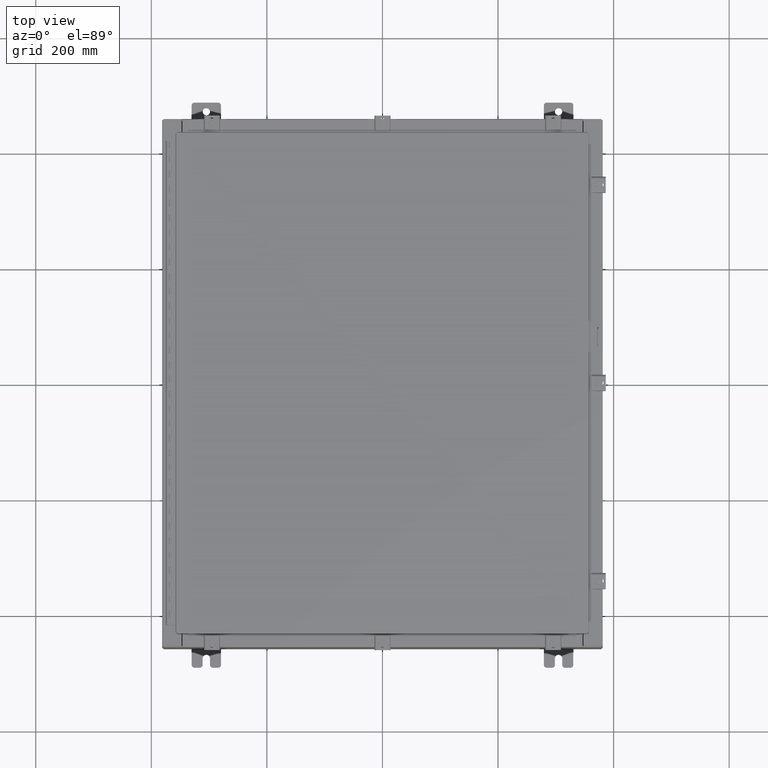
[diagram: clean part render]
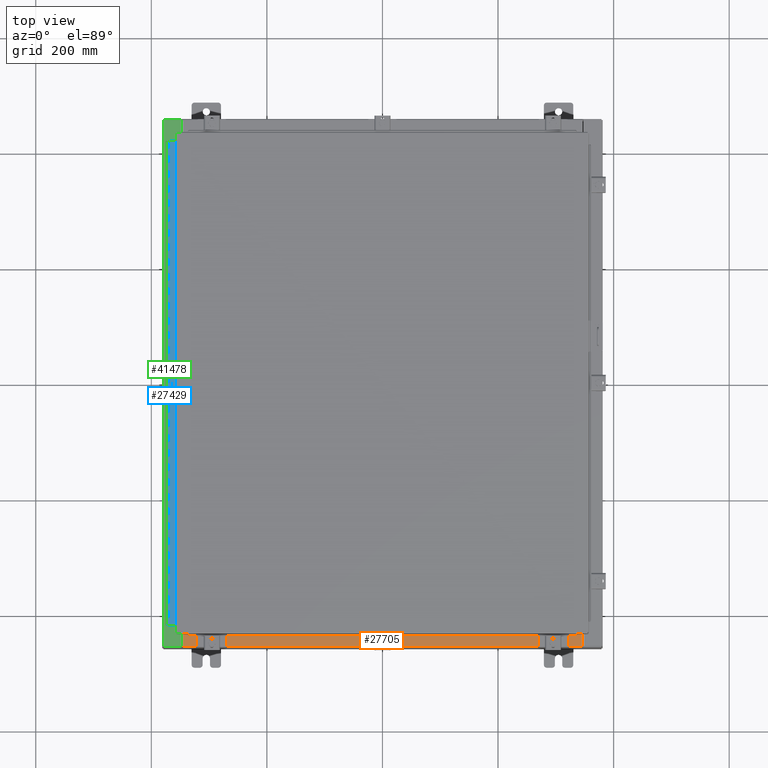
[diagram: same view with three faces highlighted in distinct colors, each labeled with its STEP entity id]
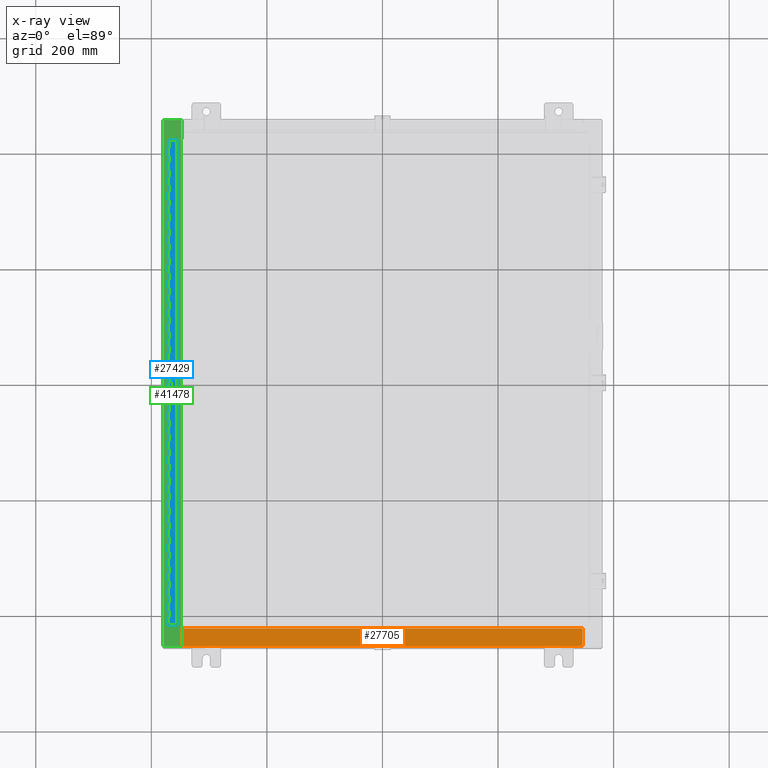
[diagram: x-ray of the same camera — body ghosted, the three highlighted faces saturated]
A machine part, top view with three faces highlighted in distinct colors.
The next image is the same camera in x-ray (body ghosted, the three faces saturated) — at least one of them is partly hidden behind the body in this view.
Their STEP definitions:

[orange] entity #27705 — the highlighted planar face has unit normal (-0, -0, 1).
#3696 = VERTEX_POINT ( 'NONE', #6119 ) ;
#3880 = CARTESIAN_POINT ( 'NONE',  ( 13.63720000000000400, -1.287299999999999900, 4.000000000000004400 ) ) ;
#5662 = VECTOR ( 'NONE', #11859, 39.37007874015748100 ) ;
#6050 = CARTESIAN_POINT ( 'NONE',  ( 0.0000000000000000000, 1.425992975200418500E-014, 4.000000000000000000 ) ) ;
#6119 = CARTESIAN_POINT ( 'NONE',  ( -13.63719999999999800, -1.287299999999999200, 4.000000000000004400 ) ) ;
#9411 = DIRECTION ( 'NONE',  ( 0.0000000000000000000, -1.000000000000000000, 3.566381192773190000E-015 ) ) ;
#10401 = VECTOR ( 'NONE', #32337, 39.37007874015748100 ) ;
#10516 = VERTEX_POINT ( 'NONE', #3880 ) ;
#10746 = EDGE_CURVE ( 'NONE', #16103, #10516, #41151, .T. ) ;
#11466 = LINE ( 'NONE', #42296, #10401 ) ;
#11859 = DIRECTION ( 'NONE',  ( -0.0000000000000000000, 1.000000000000000000, -3.566381192773190000E-015 ) ) ;
#12184 = VECTOR ( 'NONE', #24773, 39.37007874015748100 ) ;
#13497 = ORIENTED_EDGE ( 'NONE', *, *, #10746, .F. ) ;
#14505 = VECTOR ( 'NONE', #16921, 39.37007874015748100 ) ;
#16103 = VERTEX_POINT ( 'NONE', #36479 ) ;
#16921 = DIRECTION ( 'NONE',  ( -0.0000000000000000000, -1.000000000000000000, 3.566381192773190000E-015 ) ) ;
#19232 = ORIENTED_EDGE ( 'NONE', *, *, #34193, .T. ) ;
#22104 = LINE ( 'NONE', #41452, #12184 ) ;
#24773 = DIRECTION ( 'NONE',  ( -1.000000000000000000, 2.003232330437526000E-017, -7.144290108027600900E-032 ) ) ;
#24945 = ORIENTED_EDGE ( 'NONE', *, *, #30023, .F. ) ;
#25602 = EDGE_LOOP ( 'NONE', ( #24945, #36977, #13497, #19232 ) ) ;
#25865 = PLANE ( 'NONE',  #40417 ) ;
#27705 = ADVANCED_FACE ( 'NONE', ( #36224 ), #25865, .T. ) ;
#29382 = DIRECTION ( 'NONE',  ( 0.0000000000000000000, 3.566381192773190000E-015, 1.000000000000000000 ) ) ;
#29712 = CARTESIAN_POINT ( 'NONE',  ( -13.63719999999999800, -0.08770000000000000000, 4.000000000000000000 ) ) ;
#30023 = EDGE_CURVE ( 'NONE', #3696, #34481, #40132, .T. ) ;
#31822 = CARTESIAN_POINT ( 'NONE',  ( -13.63719999999999800, -0.07469999999999973900, 4.000000000000000000 ) ) ;
#32337 = DIRECTION ( 'NONE',  ( -1.000000000000000000, 0.0000000000000000000, 0.0000000000000000000 ) ) ;
#34193 = EDGE_CURVE ( 'NONE', #16103, #34481, #22104, .T. ) ;
#34481 = VERTEX_POINT ( 'NONE', #29712 ) ;
#36179 = EDGE_CURVE ( 'NONE', #10516, #3696, #11466, .T. ) ;
#36224 = FACE_OUTER_BOUND ( 'NONE', #25602, .T. ) ;
#36479 = CARTESIAN_POINT ( 'NONE',  ( 13.63720000000000400, -0.08769999999999965300, 4.000000000000000000 ) ) ;
#36923 = CARTESIAN_POINT ( 'NONE',  ( 13.63720000000000400, -1.300299999999999800, 4.000000000000004400 ) ) ;
#36977 = ORIENTED_EDGE ( 'NONE', *, *, #36179, .F. ) ;
#40132 = LINE ( 'NONE', #31822, #5662 ) ;
#40417 = AXIS2_PLACEMENT_3D ( 'NONE', #6050, #29382, #9411 ) ;
#41151 = LINE ( 'NONE', #36923, #14505 ) ;
#41452 = CARTESIAN_POINT ( 'NONE',  ( -1.756834753793995900E-018, -0.08770000000000000000, 4.000000000000000900 ) ) ;
#42296 = CARTESIAN_POINT ( 'NONE',  ( 13.63720000000000400, -1.287299999999999900, 4.000000000000003600 ) ) ;

[blue] entity #27429 — the highlighted planar face has unit normal (-0, -0, 1).
#70 = VERTEX_POINT ( 'NONE', #30152 ) ;
#217 = CARTESIAN_POINT ( 'NONE',  ( -0.6869999999999978300, 0.6754999999999996600, -30.50000000000000400 ) ) ;
#221 = LINE ( 'NONE', #943, #8054 ) ;
#231 = EDGE_CURVE ( 'NONE', #11872, #22519, #32296, .T. ) ;
#255 = VERTEX_POINT ( 'NONE', #287 ) ;
#287 = CARTESIAN_POINT ( 'NONE',  ( -0.6869999999999978300, 0.6754999999999996600, -10.00000000000000000 ) ) ;
#292 = DIRECTION ( 'NONE',  ( 0.0000000000000000000, 0.0000000000000000000, 1.000000000000000000 ) ) ;
#329 = CARTESIAN_POINT ( 'NONE',  ( -0.6869999999999978300, 0.6754999999999996600, -33.00000000000000000 ) ) ;
#384 = ORIENTED_EDGE ( 'NONE', *, *, #15163, .F. ) ;
#404 = VERTEX_POINT ( 'NONE', #24311 ) ;
#430 = ORIENTED_EDGE ( 'NONE', *, *, #231, .F. ) ;
#470 = EDGE_CURVE ( 'NONE', #11819, #2019, #32815, .T. ) ;
#519 = ORIENTED_EDGE ( 'NONE', *, *, #14346, .F. ) ;
#525 = ORIENTED_EDGE ( 'NONE', *, *, #18592, .F. ) ;
#585 = CARTESIAN_POINT ( 'NONE',  ( -0.6869999999999978300, 0.6754999999999996600, -32.50000000000000000 ) ) ;
#611 = ORIENTED_EDGE ( 'NONE', *, *, #9173, .F. ) ;
#615 = VERTEX_POINT ( 'NONE', #22127 ) ;
#657 = VECTOR ( 'NONE', #25580, 39.37007874015748100 ) ;
#669 = VERTEX_POINT ( 'NONE', #2577 ) ;
#681 = DIRECTION ( 'NONE',  ( 0.0000000000000000000, -0.0000000000000000000, -1.000000000000000000 ) ) ;
#699 = VECTOR ( 'NONE', #18224, 39.37007874015748100 ) ;
#740 = VECTOR ( 'NONE', #4609, 39.37007874015748100 ) ;
#790 = ORIENTED_EDGE ( 'NONE', *, *, #14919, .F. ) ;
#943 = CARTESIAN_POINT ( 'NONE',  ( -0.6869999999999973900, 0.8004999999999995500, -28.99999999999999600 ) ) ;
#992 = LINE ( 'NONE', #25900, #17680 ) ;
#995 = EDGE_CURVE ( 'NONE', #7819, #14506, #38519, .T. ) ;
#1009 = EDGE_CURVE ( 'NONE', #2019, #3196, #19722, .T. ) ;
#1061 = ORIENTED_EDGE ( 'NONE', *, *, #16940, .F. ) ;
#1063 = EDGE_CURVE ( 'NONE', #5099, #13703, #27517, .T. ) ;
#1141 = DIRECTION ( 'NONE',  ( -3.389037039080723100E-015, -1.000000000000000000, 0.0000000000000000000 ) ) ;
#1181 = VERTEX_POINT ( 'NONE', #21794 ) ;
#1198 = ORIENTED_EDGE ( 'NONE', *, *, #4176, .F. ) ;
#1202 = VECTOR ( 'NONE', #39822, 39.37007874015748100 ) ;
#1222 = DIRECTION ( 'NONE',  ( 3.389037039080723100E-015, 1.000000000000000000, -0.0000000000000000000 ) ) ;
#1256 = EDGE_CURVE ( 'NONE', #42756, #23640, #37973, .T. ) ;
#1263 = DIRECTION ( 'NONE',  ( 3.389037039080723100E-015, 1.000000000000000000, -0.0000000000000000000 ) ) ;
#1272 = CARTESIAN_POINT ( 'NONE',  ( -0.6869999999999973900, 0.8004999999999995500, -9.500000000000000000 ) ) ;
#1364 = CARTESIAN_POINT ( 'NONE',  ( -0.6869999999999978300, 0.6754999999999996600, -14.99999999999999800 ) ) ;
#1380 = LINE ( 'NONE', #14886, #18069 ) ;
#1437 = CARTESIAN_POINT ( 'NONE',  ( -0.6869999999999978300, 0.6754999999999996600, -21.00000000000000000 ) ) ;
#1455 = CARTESIAN_POINT ( 'NONE',  ( -0.6869999999999973900, 0.8004999999999995500, -11.99999999999999800 ) ) ;
#1561 = EDGE_CURVE ( 'NONE', #33968, #22748, #35314, .T. ) ;
#1564 = EDGE_CURVE ( 'NONE', #1971, #29086, #19679, .T. ) ;
#1598 = VECTOR ( 'NONE', #27686, 39.37007874015748100 ) ;
#1604 = VERTEX_POINT ( 'NONE', #34527 ) ;
#1725 = VERTEX_POINT ( 'NONE', #41986 ) ;
#1748 = CARTESIAN_POINT ( 'NONE',  ( -0.6869999999999973900, 0.8004999999999995500, -1.499999999999999800 ) ) ;
#1819 = DIRECTION ( 'NONE',  ( 3.389037039080723100E-015, 1.000000000000000000, -0.0000000000000000000 ) ) ;
#1842 = VERTEX_POINT ( 'NONE', #29244 ) ;
#1843 = CARTESIAN_POINT ( 'NONE',  ( -0.6869999999999982800, 0.5504999999999997700, -13.50000000000000000 ) ) ;
#1956 = VECTOR ( 'NONE', #30688, 39.37007874015748100 ) ;
#1971 = VERTEX_POINT ( 'NONE', #43285 ) ;
#2019 = VERTEX_POINT ( 'NONE', #33476 ) ;
#2022 = CARTESIAN_POINT ( 'NONE',  ( -0.6869999999999978300, 0.6754999999999996600, -33.00000000000000000 ) ) ;
#2152 = VECTOR ( 'NONE', #15220, 39.37007874015748100 ) ;
#2154 = VERTEX_POINT ( 'NONE', #37988 ) ;
#2171 = LINE ( 'NONE', #25617, #18871 ) ;
#2175 = ORIENTED_EDGE ( 'NONE', *, *, #41773, .F. ) ;
#2195 = VERTEX_POINT ( 'NONE', #42712 ) ;
#2217 = EDGE_CURVE ( 'NONE', #4089, #10201, #26887, .T. ) ;
#2272 = EDGE_CURVE ( 'NONE', #3548, #39200, #9174, .T. ) ;
#2310 = DIRECTION ( 'NONE',  ( 3.389037039080723100E-015, 1.000000000000000000, -0.0000000000000000000 ) ) ;
#2315 = CARTESIAN_POINT ( 'NONE',  ( -0.6869999999999978300, 0.6754999999999996600, -33.00000000000000000 ) ) ;
#2364 = CARTESIAN_POINT ( 'NONE',  ( -0.6869999999999978300, 0.6754999999999996600, -1.000000000000000000 ) ) ;
#2485 = DIRECTION ( 'NONE',  ( 0.0000000000000000000, -0.0000000000000000000, -1.000000000000000000 ) ) ;
#2521 = EDGE_CURVE ( 'NONE', #12726, #40628, #40202, .T. ) ;
#2553 = VERTEX_POINT ( 'NONE', #21233 ) ;
#2557 = ORIENTED_EDGE ( 'NONE', *, *, #1561, .T. ) ;
#2577 = CARTESIAN_POINT ( 'NONE',  ( -0.6869999999999982800, 0.5504999999999997700, -2.000000000000000000 ) ) ;
#2579 = ORIENTED_EDGE ( 'NONE', *, *, #27535, .F. ) ;
#2670 = CARTESIAN_POINT ( 'NONE',  ( -0.6869999999999982800, 0.5504999999999997700, -6.000000000000000900 ) ) ;
#2679 = VERTEX_POINT ( 'NONE', #21803 ) ;
#2732 = VECTOR ( 'NONE', #27511, 39.37007874015748100 ) ;
#2735 = CARTESIAN_POINT ( 'NONE',  ( -0.6869999999999982800, 0.5504999999999997700, -19.00000000000000000 ) ) ;
#2856 = DIRECTION ( 'NONE',  ( 0.0000000000000000000, 0.0000000000000000000, 1.000000000000000000 ) ) ;
#2896 = CARTESIAN_POINT ( 'NONE',  ( -0.6869999999999973900, 0.8004999999999995500, -16.00000000000000000 ) ) ;
#2959 = VECTOR ( 'NONE', #37558, 39.37007874015748100 ) ;
#2975 = ORIENTED_EDGE ( 'NONE', *, *, #38503, .F. ) ;
#2997 = LINE ( 'NONE', #25488, #19703 ) ;
#3044 = VECTOR ( 'NONE', #36518, 39.37007874015748100 ) ;
#3053 = ORIENTED_EDGE ( 'NONE', *, *, #1009, .F. ) ;
#3161 = DIRECTION ( 'NONE',  ( 0.0000000000000000000, 0.0000000000000000000, 1.000000000000000000 ) ) ;
#3186 = LINE ( 'NONE', #11873, #2152 ) ;
#3196 = VERTEX_POINT ( 'NONE', #27110 ) ;
#3217 = DIRECTION ( 'NONE',  ( 0.0000000000000000000, 0.0000000000000000000, 1.000000000000000000 ) ) ;
#3246 = CARTESIAN_POINT ( 'NONE',  ( -0.6869999999999978300, 0.6754999999999996600, -9.500000000000000000 ) ) ;
#3269 = VECTOR ( 'NONE', #16837, 39.37007874015748100 ) ;
#3343 = ORIENTED_EDGE ( 'NONE', *, *, #6789, .F. ) ;
#3443 = LINE ( 'NONE', #33755, #26914 ) ;
#3462 = CARTESIAN_POINT ( 'NONE',  ( -0.6869999999999978300, 0.6754999999999996600, -9.000000000000000000 ) ) ;
#3548 = VERTEX_POINT ( 'NONE', #22286 ) ;
#3585 = LINE ( 'NONE', #40261, #39105 ) ;
#3667 = DIRECTION ( 'NONE',  ( 3.389037039080723100E-015, 1.000000000000000000, -0.0000000000000000000 ) ) ;
#3690 = VECTOR ( 'NONE', #20310, 39.37007874015748100 ) ;
#3721 = CARTESIAN_POINT ( 'NONE',  ( -0.6869999999999973900, 0.8004999999999995500, -8.000000000000000000 ) ) ;
#3730 = EDGE_CURVE ( 'NONE', #33717, #8601, #11998, .T. ) ;
#3847 = VECTOR ( 'NONE', #5556, 39.37007874015748100 ) ;
#4017 = VECTOR ( 'NONE', #38019, 39.37007874015748100 ) ;
#4089 = VERTEX_POINT ( 'NONE', #28674 ) ;
#4097 = LINE ( 'NONE', #19926, #3044 ) ;
#4112 = EDGE_CURVE ( 'NONE', #28039, #13587, #38575, .T. ) ;
#4176 = EDGE_CURVE ( 'NONE', #37725, #31343, #37516, .T. ) ;
#4187 = EDGE_CURVE ( 'NONE', #42260, #3548, #992, .T. ) ;
#4188 = ORIENTED_EDGE ( 'NONE', *, *, #34315, .F. ) ;
#4325 = EDGE_CURVE ( 'NONE', #12256, #10612, #13495, .T. ) ;
#4379 = CARTESIAN_POINT ( 'NONE',  ( -0.6869999999999982800, 0.5504999999999997700, -14.49999999999999800 ) ) ;
#4403 = LINE ( 'NONE', #16831, #12219 ) ;
#4417 = VECTOR ( 'NONE', #24946, 39.37007874015748100 ) ;
#4421 = ORIENTED_EDGE ( 'NONE', *, *, #2272, .F. ) ;
#4444 = CARTESIAN_POINT ( 'NONE',  ( -0.6869999999999978300, 0.6754999999999996600, -2.500000000000000000 ) ) ;
#4506 = EDGE_CURVE ( 'NONE', #14872, #26481, #21834, .T. ) ;
#4538 = ORIENTED_EDGE ( 'NONE', *, *, #18596, .T. ) ;
#4584 = DIRECTION ( 'NONE',  ( 3.389037039080723100E-015, 1.000000000000000000, -0.0000000000000000000 ) ) ;
#4609 = DIRECTION ( 'NONE',  ( -3.389037039080723100E-015, -1.000000000000000000, 0.0000000000000000000 ) ) ;
#4808 = CARTESIAN_POINT ( 'NONE',  ( -0.6869999999999978300, 0.6754999999999996600, -17.00000000000000000 ) ) ;
#4811 = DIRECTION ( 'NONE',  ( 3.389037039080723100E-015, 1.000000000000000000, -0.0000000000000000000 ) ) ;
#4832 = DIRECTION ( 'NONE',  ( -3.389037039080723100E-015, -1.000000000000000000, 0.0000000000000000000 ) ) ;
#4925 = LINE ( 'NONE', #33313, #20608 ) ;
#4985 = CARTESIAN_POINT ( 'NONE',  ( -0.6869999999999978300, 0.6754999999999996600, -16.00000000000000000 ) ) ;
#5039 = DIRECTION ( 'NONE',  ( 3.389037039080723100E-015, 1.000000000000000000, -0.0000000000000000000 ) ) ;
#5058 = ORIENTED_EDGE ( 'NONE', *, *, #37981, .T. ) ;
#5078 = CARTESIAN_POINT ( 'NONE',  ( -0.6869999999999978300, 0.6754999999999996600, -33.00000000000000000 ) ) ;
#5099 = VERTEX_POINT ( 'NONE', #36254 ) ;
#5157 = CARTESIAN_POINT ( 'NONE',  ( -0.6869999999999978300, 0.6754999999999996600, -8.000000000000000000 ) ) ;
#5252 = VECTOR ( 'NONE', #1263, 39.37007874015748100 ) ;
#5318 = VECTOR ( 'NONE', #11467, 39.37007874015748100 ) ;
#5339 = CARTESIAN_POINT ( 'NONE',  ( -0.6869999999999982800, 0.5504999999999997700, -10.50000000000000000 ) ) ;
#5375 = DIRECTION ( 'NONE',  ( 0.0000000000000000000, 0.0000000000000000000, 1.000000000000000000 ) ) ;
#5399 = EDGE_CURVE ( 'NONE', #19875, #35542, #8187, .T. ) ;
#5400 = CARTESIAN_POINT ( 'NONE',  ( -0.6869999999999982800, 0.5504999999999997700, -17.50000000000000000 ) ) ;
#5447 = LINE ( 'NONE', #21622, #4417 ) ;
#5459 = CARTESIAN_POINT ( 'NONE',  ( -0.6869999999999982800, 0.5504999999999997700, -12.49999999999999800 ) ) ;
#5476 = CARTESIAN_POINT ( 'NONE',  ( -0.6869999999999978300, 0.6754999999999996600, -2.999999999999999600 ) ) ;
#5484 = VECTOR ( 'NONE', #42318, 39.37007874015748100 ) ;
#5491 = VERTEX_POINT ( 'NONE', #5157 ) ;
#5543 = VECTOR ( 'NONE', #30344, 39.37007874015748100 ) ;
#5556 = DIRECTION ( 'NONE',  ( -3.389037039080723100E-015, -1.000000000000000000, 0.0000000000000000000 ) ) ;
#5589 = VERTEX_POINT ( 'NONE', #9095 ) ;
#5663 = VERTEX_POINT ( 'NONE', #2670 ) ;
#5679 = VECTOR ( 'NONE', #23446, 39.37007874015748100 ) ;
#5690 = EDGE_CURVE ( 'NONE', #19875, #43136, #24315, .T. ) ;
#5732 = ORIENTED_EDGE ( 'NONE', *, *, #17137, .F. ) ;
#5767 = VERTEX_POINT ( 'NONE', #3246 ) ;
#5848 = EDGE_CURVE ( 'NONE', #5663, #29980, #18052, .T. ) ;
#5854 = VERTEX_POINT ( 'NONE', #27138 ) ;
#5871 = ORIENTED_EDGE ( 'NONE', *, *, #21418, .F. ) ;
#6055 = DIRECTION ( 'NONE',  ( -3.389037039080723100E-015, -1.000000000000000000, 0.0000000000000000000 ) ) ;
#6082 = VERTEX_POINT ( 'NONE', #41610 ) ;
#6142 = DIRECTION ( 'NONE',  ( 3.389037039080723100E-015, 1.000000000000000000, -0.0000000000000000000 ) ) ;
#6171 = EDGE_CURVE ( 'NONE', #2679, #255, #34199, .T. ) ;
#6225 = EDGE_CURVE ( 'NONE', #29086, #1842, #32112, .T. ) ;
#6312 = CARTESIAN_POINT ( 'NONE',  ( -0.6869999999999982800, 0.5504999999999997700, -1.499999999999999800 ) ) ;
#6412 = VECTOR ( 'NONE', #2310, 39.37007874015748100 ) ;
#6467 = LINE ( 'NONE', #20714, #41985 ) ;
#6473 = CARTESIAN_POINT ( 'NONE',  ( -0.6869999999999978300, 0.6754999999999996600, -17.50000000000000000 ) ) ;
#6599 = LINE ( 'NONE', #20461, #5543 ) ;
#6677 = EDGE_CURVE ( 'NONE', #5854, #23933, #17469, .T. ) ;
#6690 = VECTOR ( 'NONE', #19209, 39.37007874015748100 ) ;
#6692 = LINE ( 'NONE', #32867, #42205 ) ;
#6722 = LINE ( 'NONE', #35534, #13513 ) ;
#6727 = ORIENTED_EDGE ( 'NONE', *, *, #32677, .F. ) ;
#6757 = DIRECTION ( 'NONE',  ( 3.389037039080723100E-015, 1.000000000000000000, -0.0000000000000000000 ) ) ;
#6789 = EDGE_CURVE ( 'NONE', #35903, #1725, #5447, .T. ) ;
#6802 = VERTEX_POINT ( 'NONE', #8344 ) ;
#6823 = ORIENTED_EDGE ( 'NONE', *, *, #15106, .T. ) ;
#6833 = ORIENTED_EDGE ( 'NONE', *, *, #20941, .F. ) ;
#6858 = ORIENTED_EDGE ( 'NONE', *, *, #17915, .F. ) ;
#6916 = VERTEX_POINT ( 'NONE', #18982 ) ;
#6963 = ORIENTED_EDGE ( 'NONE', *, *, #1063, .F. ) ;
#6991 = ORIENTED_EDGE ( 'NONE', *, *, #38435, .F. ) ;
#7028 = DIRECTION ( 'NONE',  ( 0.0000000000000000000, 0.0000000000000000000, 1.000000000000000000 ) ) ;
#7076 = CARTESIAN_POINT ( 'NONE',  ( -0.6869999999999978300, 0.6754999999999996600, -33.00000000000000000 ) ) ;
#7095 = ORIENTED_EDGE ( 'NONE', *, *, #11405, .T. ) ;
#7127 = CARTESIAN_POINT ( 'NONE',  ( -0.6869999999999982800, 0.5504999999999997700, -9.000000000000000000 ) ) ;
#7139 = VECTOR ( 'NONE', #24008, 39.37007874015748100 ) ;
#7236 = EDGE_CURVE ( 'NONE', #35542, #34865, #6467, .T. ) ;
#7241 = VERTEX_POINT ( 'NONE', #24037 ) ;
#7361 = VERTEX_POINT ( 'NONE', #1437 ) ;
#7389 = DIRECTION ( 'NONE',  ( 3.389037039080723100E-015, 1.000000000000000000, -0.0000000000000000000 ) ) ;
#7391 = VECTOR ( 'NONE', #37983, 39.37007874015748100 ) ;
#7553 = CARTESIAN_POINT ( 'NONE',  ( -0.6869999999999982800, 0.5504999999999997700, -16.50000000000000000 ) ) ;
#7562 = CARTESIAN_POINT ( 'NONE',  ( -0.6869999999999982800, 0.5504999999999997700, -7.000000000000000000 ) ) ;
#7574 = LINE ( 'NONE', #14763, #24254 ) ;
#7575 = VERTEX_POINT ( 'NONE', #2735 ) ;
#7656 = VECTOR ( 'NONE', #32623, 39.37007874015748100 ) ;
#7819 = VERTEX_POINT ( 'NONE', #33780 ) ;
#7820 = CARTESIAN_POINT ( 'NONE',  ( -0.6869999999999982800, 0.5504999999999997700, -12.99999999999999800 ) ) ;
#7956 = DIRECTION ( 'NONE',  ( -3.389037039080723100E-015, -1.000000000000000000, 0.0000000000000000000 ) ) ;
#7977 = CARTESIAN_POINT ( 'NONE',  ( -0.6869999999999973900, 0.8004999999999995500, -28.50000000000000000 ) ) ;
#8038 = EDGE_CURVE ( 'NONE', #16926, #16710, #29353, .T. ) ;
#8054 = VECTOR ( 'NONE', #20930, 39.37007874015748100 ) ;
#8138 = DIRECTION ( 'NONE',  ( -3.389037039080723100E-015, -1.000000000000000000, 0.0000000000000000000 ) ) ;
#8162 = CARTESIAN_POINT ( 'NONE',  ( -0.6869999999999978300, 0.6754999999999996600, -17.99999999999999600 ) ) ;
#8187 = LINE ( 'NONE', #34773, #34795 ) ;
#8244 = VECTOR ( 'NONE', #32068, 39.37007874015748100 ) ;
#8274 = CARTESIAN_POINT ( 'NONE',  ( -0.6869999999999973900, 0.8004999999999995500, -27.50000000000000000 ) ) ;
#8328 = VERTEX_POINT ( 'NONE', #33474 ) ;
#8330 = VECTOR ( 'NONE', #21317, 39.37007874015748100 ) ;
#8344 = CARTESIAN_POINT ( 'NONE',  ( -0.6869999999999982800, 0.5504999999999997700, -31.00000000000000000 ) ) ;
#8368 = VECTOR ( 'NONE', #35092, 39.37007874015748100 ) ;
#8528 = EDGE_CURVE ( 'NONE', #5767, #19788, #9490, .T. ) ;
#8538 = DIRECTION ( 'NONE',  ( 3.389037039080723100E-015, 1.000000000000000000, -0.0000000000000000000 ) ) ;
#8589 = VECTOR ( 'NONE', #17830, 39.37007874015748100 ) ;
#8591 = VERTEX_POINT ( 'NONE', #24962 ) ;
#8601 = VERTEX_POINT ( 'NONE', #4985 ) ;
#8700 = VECTOR ( 'NONE', #27654, 39.37007874015748100 ) ;
#8707 = EDGE_CURVE ( 'NONE', #5589, #43187, #9982, .T. ) ;
#8737 = VECTOR ( 'NONE', #4584, 39.37007874015748100 ) ;
#8743 = DIRECTION ( 'NONE',  ( 0.0000000000000000000, -0.0000000000000000000, -1.000000000000000000 ) ) ;
#8788 = DIRECTION ( 'NONE',  ( 0.0000000000000000000, 0.0000000000000000000, 1.000000000000000000 ) ) ;
#8866 = CARTESIAN_POINT ( 'NONE',  ( -0.6869999999999982800, 0.5504999999999997700, -31.50000000000000400 ) ) ;
#9001 = VECTOR ( 'NONE', #1141, 39.37007874015748100 ) ;
#9034 = EDGE_CURVE ( 'NONE', #2154, #34043, #42868, .T. ) ;
#9094 = VECTOR ( 'NONE', #37704, 39.37007874015748100 ) ;
#9095 = CARTESIAN_POINT ( 'NONE',  ( -0.6869999999999982800, 0.5504999999999997700, -8.500000000000000000 ) ) ;
#9173 = EDGE_CURVE ( 'NONE', #615, #25572, #35500, .T. ) ;
#9174 = LINE ( 'NONE', #26327, #14905 ) ;
#9254 = CARTESIAN_POINT ( 'NONE',  ( -0.6869999999999982800, 0.5504999999999997700, -27.00000000000000000 ) ) ;
#9306 = CARTESIAN_POINT ( 'NONE',  ( -0.6869999999999982800, 0.5504999999999997700, -19.50000000000000000 ) ) ;
#9463 = CARTESIAN_POINT ( 'NONE',  ( -0.6869999999999978300, 0.6754999999999996600, -22.50000000000000000 ) ) ;
#9486 = ORIENTED_EDGE ( 'NONE', *, *, #34922, .T. ) ;
#9490 = LINE ( 'NONE', #41357, #7391 ) ;
#9508 = LINE ( 'NONE', #38891, #657 ) ;
#9570 = CARTESIAN_POINT ( 'NONE',  ( -0.6869999999999982800, 0.5504999999999997700, -21.00000000000000000 ) ) ;
#9591 = LINE ( 'NONE', #24780, #26266 ) ;
#9595 = LINE ( 'NONE', #1272, #740 ) ;
#9677 = EDGE_CURVE ( 'NONE', #29761, #615, #27629, .T. ) ;
#9746 = EDGE_CURVE ( 'NONE', #22365, #37190, #15630, .T. ) ;
#9764 = CARTESIAN_POINT ( 'NONE',  ( -0.6869999999999982800, 0.5504999999999997700, -28.50000000000000000 ) ) ;
#9798 = EDGE_CURVE ( 'NONE', #36735, #12286, #40185, .T. ) ;
#9819 = VECTOR ( 'NONE', #22761, 39.37007874015748100 ) ;
#9849 = CARTESIAN_POINT ( 'NONE',  ( -0.6869999999999978300, 0.6754999999999996600, -33.00000000000000000 ) ) ;
#9982 = LINE ( 'NONE', #28891, #11027 ) ;
#9999 = CARTESIAN_POINT ( 'NONE',  ( -0.6869999999999973900, 0.8004999999999995500, -20.50000000000000400 ) ) ;
#10081 = ORIENTED_EDGE ( 'NONE', *, *, #11719, .F. ) ;
#10127 = CARTESIAN_POINT ( 'NONE',  ( -0.6869999999999973900, 0.8004999999999995500, -4.000000000000000000 ) ) ;
#10143 = ORIENTED_EDGE ( 'NONE', *, *, #26157, .T. ) ;
#10151 = VECTOR ( 'NONE', #21688, 39.37007874015748100 ) ;
#10161 = ORIENTED_EDGE ( 'NONE', *, *, #10630, .T. ) ;
#10180 = CARTESIAN_POINT ( 'NONE',  ( -0.6869999999999973900, 0.8004999999999995500, -14.99999999999999800 ) ) ;
#10201 = VERTEX_POINT ( 'NONE', #11638 ) ;
#10216 = CARTESIAN_POINT ( 'NONE',  ( -0.6869999999999982800, 0.5504999999999997700, -20.00000000000000000 ) ) ;
#10226 = EDGE_CURVE ( 'NONE', #38798, #40219, #16631, .T. ) ;
#10300 = VERTEX_POINT ( 'NONE', #31898 ) ;
#10303 = EDGE_CURVE ( 'NONE', #28335, #16617, #6722, .T. ) ;
#10315 = VECTOR ( 'NONE', #16282, 39.37007874015748100 ) ;
#10318 = VERTEX_POINT ( 'NONE', #35684 ) ;
#10341 = CARTESIAN_POINT ( 'NONE',  ( -0.6869999999999982800, 0.5504999999999997700, -20.50000000000000400 ) ) ;
#10373 = DIRECTION ( 'NONE',  ( 3.389037039080723100E-015, 1.000000000000000000, -0.0000000000000000000 ) ) ;
#10419 = DIRECTION ( 'NONE',  ( 0.0000000000000000000, 0.0000000000000000000, 1.000000000000000000 ) ) ;
#10427 = ORIENTED_EDGE ( 'NONE', *, *, #10631, .T. ) ;
#10434 = CARTESIAN_POINT ( 'NONE',  ( -0.6869999999999978300, 0.6754999999999996600, -27.00000000000000000 ) ) ;
#10570 = CARTESIAN_POINT ( 'NONE',  ( -0.6869999999999978300, 0.6754999999999996600, -33.00000000000000000 ) ) ;
#10612 = VERTEX_POINT ( 'NONE', #28065 ) ;
#10630 = EDGE_CURVE ( 'NONE', #20205, #10300, #27548, .T. ) ;
#10631 = EDGE_CURVE ( 'NONE', #27381, #26030, #18690, .T. ) ;
#10648 = CARTESIAN_POINT ( 'NONE',  ( -0.6869999999999973900, 0.8004999999999995500, -5.500000000000000000 ) ) ;
#10683 = ORIENTED_EDGE ( 'NONE', *, *, #5399, .F. ) ;
#10728 = LINE ( 'NONE', #36443, #36305 ) ;
#10748 = CARTESIAN_POINT ( 'NONE',  ( -0.6869999999999982800, 0.5504999999999997700, -3.500000000000000000 ) ) ;
#10865 = VECTOR ( 'NONE', #13335, 39.37007874015748100 ) ;
#10870 = DIRECTION ( 'NONE',  ( -3.389037039080723100E-015, -1.000000000000000000, 0.0000000000000000000 ) ) ;
#10900 = DIRECTION ( 'NONE',  ( 0.0000000000000000000, -0.0000000000000000000, -1.000000000000000000 ) ) ;
#10923 = CARTESIAN_POINT ( 'NONE',  ( -0.6869999999999978300, 0.6754999999999996600, -23.50000000000000000 ) ) ;
#10985 = CARTESIAN_POINT ( 'NONE',  ( -0.6869999999999973900, 0.8004999999999995500, -23.00000000000000000 ) ) ;
#11027 = VECTOR ( 'NONE', #32251, 39.37007874015748100 ) ;
#11079 = EDGE_CURVE ( 'NONE', #42260, #16617, #2997, .T. ) ;
#11240 = VECTOR ( 'NONE', #24171, 39.37007874015748100 ) ;
#11252 = CARTESIAN_POINT ( 'NONE',  ( -0.6869999999999982800, 0.5504999999999997700, -30.50000000000000400 ) ) ;
#11374 = LINE ( 'NONE', #32910, #10315 ) ;
#11405 = EDGE_CURVE ( 'NONE', #70, #7361, #34804, .T. ) ;
#11416 = CARTESIAN_POINT ( 'NONE',  ( -0.6869999999999973900, 0.8004999999999995500, -14.00000000000000000 ) ) ;
#11467 = DIRECTION ( 'NONE',  ( 0.0000000000000000000, -0.0000000000000000000, -1.000000000000000000 ) ) ;
#11508 = CARTESIAN_POINT ( 'NONE',  ( -0.6869999999999973900, 0.8004999999999995500, -18.50000000000000000 ) ) ;
#11590 = EDGE_CURVE ( 'NONE', #404, #7575, #28514, .T. ) ;
#11605 = LINE ( 'NONE', #7553, #28288 ) ;
#11607 = ORIENTED_EDGE ( 'NONE', *, *, #34769, .F. ) ;
#11638 = CARTESIAN_POINT ( 'NONE',  ( -0.6869999999999978300, 0.6754999999999996600, -4.000000000000000000 ) ) ;
#11719 = EDGE_CURVE ( 'NONE', #15882, #14582, #31100, .T. ) ;
#11768 = ORIENTED_EDGE ( 'NONE', *, *, #9798, .F. ) ;
#11802 = CARTESIAN_POINT ( 'NONE',  ( -0.6869999999999978300, 0.6754999999999996600, -11.50000000000000000 ) ) ;
#11819 = VERTEX_POINT ( 'NONE', #29377 ) ;
#11856 = CARTESIAN_POINT ( 'NONE',  ( -0.6869999999999973900, 0.8004999999999995500, -29.99999999999999600 ) ) ;
#11872 = VERTEX_POINT ( 'NONE', #19612 ) ;
#11873 = CARTESIAN_POINT ( 'NONE',  ( -0.6869999999999973900, 0.8004999999999995500, -4.500000000000000000 ) ) ;
#11890 = VECTOR ( 'NONE', #1222, 39.37007874015748100 ) ;
#11929 = DIRECTION ( 'NONE',  ( 0.0000000000000000000, -0.0000000000000000000, -1.000000000000000000 ) ) ;
#11933 = ORIENTED_EDGE ( 'NONE', *, *, #35728, .T. ) ;
#11976 = LINE ( 'NONE', #30448, #28642 ) ;
#11998 = LINE ( 'NONE', #2896, #18757 ) ;
#12219 = VECTOR ( 'NONE', #36817, 39.37007874015748100 ) ;
#12256 = VERTEX_POINT ( 'NONE', #25337 ) ;
#12286 = VERTEX_POINT ( 'NONE', #8866 ) ;
#12320 = VERTEX_POINT ( 'NONE', #15716 ) ;
#12350 = EDGE_CURVE ( 'NONE', #39920, #33841, #16520, .T. ) ;
#12435 = CARTESIAN_POINT ( 'NONE',  ( -0.6869999999999978300, 0.6754999999999996600, -24.50000000000000000 ) ) ;
#12483 = CARTESIAN_POINT ( 'NONE',  ( -0.6869999999999978300, 0.6754999999999996600, -33.00000000000000000 ) ) ;
#12528 = VERTEX_POINT ( 'NONE', #40075 ) ;
#12726 = VERTEX_POINT ( 'NONE', #7820 ) ;
#12774 = CARTESIAN_POINT ( 'NONE',  ( -0.6869999999999973900, 0.8004999999999995500, -2.500000000000000000 ) ) ;
#12779 = LINE ( 'NONE', #12774, #37300 ) ;
#12789 = CARTESIAN_POINT ( 'NONE',  ( -0.6869999999999978300, 0.6754999999999996600, -33.00000000000000000 ) ) ;
#12800 = ORIENTED_EDGE ( 'NONE', *, *, #35924, .F. ) ;
#12886 = LINE ( 'NONE', #24258, #2959 ) ;
#12933 = LINE ( 'NONE', #24369, #11890 ) ;
#12972 = CARTESIAN_POINT ( 'NONE',  ( -0.6869999999999978300, 0.6754999999999996600, -29.50000000000000000 ) ) ;
#13029 = VERTEX_POINT ( 'NONE', #16241 ) ;
#13072 = ORIENTED_EDGE ( 'NONE', *, *, #23707, .F. ) ;
#13196 = LINE ( 'NONE', #10127, #3269 ) ;
#13309 = ORIENTED_EDGE ( 'NONE', *, *, #20874, .F. ) ;
#13316 = EDGE_CURVE ( 'NONE', #22703, #10300, #7574, .T. ) ;
#13335 = DIRECTION ( 'NONE',  ( 0.0000000000000000000, -0.0000000000000000000, -1.000000000000000000 ) ) ;
#13347 = DIRECTION ( 'NONE',  ( -3.389037039080723100E-015, -1.000000000000000000, 0.0000000000000000000 ) ) ;
#13490 = ORIENTED_EDGE ( 'NONE', *, *, #27989, .F. ) ;
#13494 = DIRECTION ( 'NONE',  ( 3.389037039080723100E-015, 1.000000000000000000, -0.0000000000000000000 ) ) ;
#13495 = LINE ( 'NONE', #39923, #30180 ) ;
#13513 = VECTOR ( 'NONE', #18927, 39.37007874015748100 ) ;
#13550 = VECTOR ( 'NONE', #22736, 39.37007874015748100 ) ;
#13587 = VERTEX_POINT ( 'NONE', #27386 ) ;
#13603 = CARTESIAN_POINT ( 'NONE',  ( -0.6869999999999973900, 0.8004999999999995500, -27.00000000000000000 ) ) ;
#13703 = VERTEX_POINT ( 'NONE', #4808 ) ;
#13764 = LINE ( 'NONE', #38844, #3847 ) ;
#13772 = CARTESIAN_POINT ( 'NONE',  ( -0.6869999999999982800, 0.5504999999999997700, -25.50000000000000400 ) ) ;
#13836 = ORIENTED_EDGE ( 'NONE', *, *, #10226, .F. ) ;
#13967 = VECTOR ( 'NONE', #10419, 39.37007874015748100 ) ;
#14012 = LINE ( 'NONE', #14997, #32805 ) ;
#14065 = DIRECTION ( 'NONE',  ( 0.0000000000000000000, -0.0000000000000000000, -1.000000000000000000 ) ) ;
#14179 = VECTOR ( 'NONE', #40921, 39.37007874015748100 ) ;
#14269 = EDGE_CURVE ( 'NONE', #5767, #15882, #9595, .T. ) ;
#14279 = LINE ( 'NONE', #31860, #22108 ) ;
#14310 = VECTOR ( 'NONE', #43276, 39.37007874015748100 ) ;
#14346 = EDGE_CURVE ( 'NONE', #18108, #32973, #14279, .T. ) ;
#14347 = CARTESIAN_POINT ( 'NONE',  ( -0.6869999999999982800, 0.5504999999999997700, -0.5000000000000000000 ) ) ;
#14506 = VERTEX_POINT ( 'NONE', #9254 ) ;
#14553 = VECTOR ( 'NONE', #19993, 39.37007874015748100 ) ;
#14582 = VERTEX_POINT ( 'NONE', #33028 ) ;
#14584 = CARTESIAN_POINT ( 'NONE',  ( -0.6869999999999982800, 0.5504999999999997700, -31.50000000000000400 ) ) ;
#14675 = VECTOR ( 'NONE', #18554, 39.37007874015748100 ) ;
#14724 = EDGE_CURVE ( 'NONE', #1725, #28335, #37217, .T. ) ;
#14763 = CARTESIAN_POINT ( 'NONE',  ( -0.6869999999999973900, 0.8004999999999995500, -28.00000000000000000 ) ) ;
#14796 = CARTESIAN_POINT ( 'NONE',  ( -0.6869999999999973900, 0.8004999999999995500, -21.50000000000000400 ) ) ;
#14829 = ORIENTED_EDGE ( 'NONE', *, *, #41584, .F. ) ;
#14872 = VERTEX_POINT ( 'NONE', #12972 ) ;
#14886 = CARTESIAN_POINT ( 'NONE',  ( -0.6869999999999973900, 0.8004999999999995500, -19.50000000000000000 ) ) ;
#14905 = VECTOR ( 'NONE', #19791, 39.37007874015748100 ) ;
#14919 = EDGE_CURVE ( 'NONE', #15705, #22365, #27784, .T. ) ;
#14997 = CARTESIAN_POINT ( 'NONE',  ( -0.6869999999999973900, 0.8004999999999995500, -0.5000000000000000000 ) ) ;
#15024 = VECTOR ( 'NONE', #41510, 39.37007874015748100 ) ;
#15038 = LINE ( 'NONE', #5078, #41686 ) ;
#15106 = EDGE_CURVE ( 'NONE', #2154, #1842, #29326, .T. ) ;
#15110 = EDGE_CURVE ( 'NONE', #40523, #5099, #11605, .T. ) ;
#15163 = EDGE_CURVE ( 'NONE', #6082, #22703, #19430, .T. ) ;
#15185 = LINE ( 'NONE', #24561, #5252 ) ;
#15220 = DIRECTION ( 'NONE',  ( -3.389037039080723100E-015, -1.000000000000000000, 0.0000000000000000000 ) ) ;
#15244 = VECTOR ( 'NONE', #25452, 39.37007874015748100 ) ;
#15245 = VECTOR ( 'NONE', #31587, 39.37007874015748100 ) ;
#15250 = EDGE_CURVE ( 'NONE', #41464, #23576, #32992, .T. ) ;
#15315 = ORIENTED_EDGE ( 'NONE', *, *, #15250, .T. ) ;
#15430 = LINE ( 'NONE', #27990, #41029 ) ;
#15525 = DIRECTION ( 'NONE',  ( 0.0000000000000000000, 0.0000000000000000000, 1.000000000000000000 ) ) ;
#15553 = CARTESIAN_POINT ( 'NONE',  ( -0.6869999999999982800, 0.5504999999999997700, -14.49999999999999800 ) ) ;
#15630 = LINE ( 'NONE', #32517, #23443 ) ;
#15687 = ORIENTED_EDGE ( 'NONE', *, *, #25626, .F. ) ;
#15705 = VERTEX_POINT ( 'NONE', #31101 ) ;
#15716 = CARTESIAN_POINT ( 'NONE',  ( -0.6869999999999978300, 0.6754999999999996600, -12.49999999999999800 ) ) ;
#15882 = VERTEX_POINT ( 'NONE', #42074 ) ;
#15954 = ORIENTED_EDGE ( 'NONE', *, *, #22443, .T. ) ;
#16034 = CARTESIAN_POINT ( 'NONE',  ( -0.6869999999999973900, 0.8004999999999995500, -31.50000000000000400 ) ) ;
#16074 = CARTESIAN_POINT ( 'NONE',  ( -0.6869999999999982800, 0.5504999999999997700, -16.00000000000000000 ) ) ;
#16145 = LINE ( 'NONE', #14584, #8330 ) ;
#16200 = ORIENTED_EDGE ( 'NONE', *, *, #37080, .F. ) ;
#16205 = CARTESIAN_POINT ( 'NONE',  ( -0.6869999999999982800, 0.5504999999999997700, -23.99999999999999600 ) ) ;
#16209 = DIRECTION ( 'NONE',  ( -3.389037039080723100E-015, -1.000000000000000000, 0.0000000000000000000 ) ) ;
#16241 = CARTESIAN_POINT ( 'NONE',  ( -0.6869999999999982800, 0.5504999999999997700, -14.00000000000000000 ) ) ;
#16282 = DIRECTION ( 'NONE',  ( 0.0000000000000000000, 0.0000000000000000000, 1.000000000000000000 ) ) ;
#16287 = VECTOR ( 'NONE', #3161, 39.37007874015748100 ) ;
#16460 = ORIENTED_EDGE ( 'NONE', *, *, #20555, .F. ) ;
#16520 = LINE ( 'NONE', #9306, #7656 ) ;
#16568 = DIRECTION ( 'NONE',  ( 0.0000000000000000000, -0.0000000000000000000, -1.000000000000000000 ) ) ;
#16579 = CARTESIAN_POINT ( 'NONE',  ( -0.6869999999999978300, 0.6754999999999996600, -33.00000000000000000 ) ) ;
#16606 = CARTESIAN_POINT ( 'NONE',  ( -0.6869999999999973900, 0.8004999999999995500, -20.00000000000000000 ) ) ;
#16617 = VERTEX_POINT ( 'NONE', #28991 ) ;
#16631 = LINE ( 'NONE', #41858, #17690 ) ;
#16662 = DIRECTION ( 'NONE',  ( 0.0000000000000000000, -0.0000000000000000000, -1.000000000000000000 ) ) ;
#16674 = DIRECTION ( 'NONE',  ( 3.389037039080723100E-015, 1.000000000000000000, -0.0000000000000000000 ) ) ;
#16710 = VERTEX_POINT ( 'NONE', #29573 ) ;
#16831 = CARTESIAN_POINT ( 'NONE',  ( -0.6869999999999982800, 0.5504999999999997700, -29.50000000000000000 ) ) ;
#16837 = DIRECTION ( 'NONE',  ( 3.389037039080723100E-015, 1.000000000000000000, -0.0000000000000000000 ) ) ;
#16838 = CARTESIAN_POINT ( 'NONE',  ( -0.6869999999999973900, 0.8004999999999995500, -32.00000000000000000 ) ) ;
#16926 = VERTEX_POINT ( 'NONE', #23866 ) ;
#16940 = EDGE_CURVE ( 'NONE', #6916, #5589, #35504, .T. ) ;
#16975 = CARTESIAN_POINT ( 'NONE',  ( -0.6869999999999978300, 0.6754999999999996600, -19.00000000000000000 ) ) ;
#17003 = CARTESIAN_POINT ( 'NONE',  ( -0.6869999999999973900, 0.8004999999999995500, -11.00000000000000000 ) ) ;
#17034 = LINE ( 'NONE', #36662, #34784 ) ;
#17137 = EDGE_CURVE ( 'NONE', #35566, #35550, #26101, .T. ) ;
#17326 = VECTOR ( 'NONE', #15525, 39.37007874015748100 ) ;
#17386 = ORIENTED_EDGE ( 'NONE', *, *, #22319, .F. ) ;
#17413 = ORIENTED_EDGE ( 'NONE', *, *, #22128, .T. ) ;
#17444 = CARTESIAN_POINT ( 'NONE',  ( -0.6869999999999973900, 0.8004999999999995500, -21.00000000000000000 ) ) ;
#17469 = LINE ( 'NONE', #37684, #8589 ) ;
#17528 = LINE ( 'NONE', #33090, #34217 ) ;
#17543 = VECTOR ( 'NONE', #22776, 39.37007874015748100 ) ;
#17574 = CARTESIAN_POINT ( 'NONE',  ( -0.6869999999999973900, 0.8004999999999995500, -29.50000000000000000 ) ) ;
#17588 = ORIENTED_EDGE ( 'NONE', *, *, #30614, .F. ) ;
#17651 = EDGE_CURVE ( 'NONE', #12286, #20091, #16145, .T. ) ;
#17680 = VECTOR ( 'NONE', #32614, 39.37007874015748100 ) ;
#17690 = VECTOR ( 'NONE', #31743, 39.37007874015748100 ) ;
#17719 = ORIENTED_EDGE ( 'NONE', *, *, #36904, .F. ) ;
#17751 = DIRECTION ( 'NONE',  ( 3.369016658928398200E-015, 1.000000000000000000, 0.0000000000000000000 ) ) ;
#17762 = DIRECTION ( 'NONE',  ( 0.0000000000000000000, -0.0000000000000000000, -1.000000000000000000 ) ) ;
#17764 = EDGE_CURVE ( 'NONE', #33968, #33796, #38589, .T. ) ;
#17792 = VECTOR ( 'NONE', #3217, 39.37007874015748100 ) ;
#17818 = ORIENTED_EDGE ( 'NONE', *, *, #22026, .F. ) ;
#17830 = DIRECTION ( 'NONE',  ( -3.389037039080723100E-015, -1.000000000000000000, 0.0000000000000000000 ) ) ;
#17908 = EDGE_CURVE ( 'NONE', #33841, #8328, #32289, .T. ) ;
#17915 = EDGE_CURVE ( 'NONE', #40589, #29307, #25505, .T. ) ;
#17945 = DIRECTION ( 'NONE',  ( 3.389037039080723100E-015, 1.000000000000000000, -0.0000000000000000000 ) ) ;
#17969 = EDGE_CURVE ( 'NONE', #12320, #42140, #3585, .T. ) ;
#17976 = DIRECTION ( 'NONE',  ( 3.389037039080723100E-015, 1.000000000000000000, -0.0000000000000000000 ) ) ;
#18020 = DIRECTION ( 'NONE',  ( 0.0000000000000000000, -0.0000000000000000000, -1.000000000000000000 ) ) ;
#18052 = LINE ( 'NONE', #40458, #25856 ) ;
#18069 = VECTOR ( 'NONE', #18237, 39.37007874015748100 ) ;
#18108 = VERTEX_POINT ( 'NONE', #7562 ) ;
#18125 = LINE ( 'NONE', #17444, #42683 ) ;
#18143 = LINE ( 'NONE', #2022, #25961 ) ;
#18149 = VECTOR ( 'NONE', #37561, 39.37007874015748100 ) ;
#18155 = EDGE_CURVE ( 'NONE', #33091, #20990, #14012, .T. ) ;
#18183 = CARTESIAN_POINT ( 'NONE',  ( -0.6869999999999973900, 0.8004999999999995500, -26.00000000000000000 ) ) ;
#18224 = DIRECTION ( 'NONE',  ( 0.0000000000000000000, -0.0000000000000000000, -1.000000000000000000 ) ) ;
#18237 = DIRECTION ( 'NONE',  ( -3.389037039080723100E-015, -1.000000000000000000, 0.0000000000000000000 ) ) ;
#18281 = VERTEX_POINT ( 'NONE', #15553 ) ;
#18324 = CARTESIAN_POINT ( 'NONE',  ( -0.6869999999999982800, 0.5504999999999997700, -32.00000000000000000 ) ) ;
#18344 = ORIENTED_EDGE ( 'NONE', *, *, #11590, .F. ) ;
#18355 = EDGE_CURVE ( 'NONE', #7575, #31452, #32243, .T. ) ;
#18376 = LINE ( 'NONE', #42250, #17326 ) ;
#18381 = VECTOR ( 'NONE', #17762, 39.37007874015748100 ) ;
#18436 = EDGE_CURVE ( 'NONE', #6916, #5491, #11374, .T. ) ;
#18473 = ORIENTED_EDGE ( 'NONE', *, *, #20106, .F. ) ;
#18554 = DIRECTION ( 'NONE',  ( 0.0000000000000000000, -0.0000000000000000000, -1.000000000000000000 ) ) ;
#18592 = EDGE_CURVE ( 'NONE', #20410, #5491, #23871, .T. ) ;
#18596 = EDGE_CURVE ( 'NONE', #43037, #31452, #40617, .T. ) ;
#18600 = CARTESIAN_POINT ( 'NONE',  ( -0.6869999999999978300, 0.6754999999999996600, 0.0000000000000000000 ) ) ;
#18637 = ORIENTED_EDGE ( 'NONE', *, *, #38878, .F. ) ;
#18677 = EDGE_CURVE ( 'NONE', #33091, #36639, #29613, .T. ) ;
#18690 = LINE ( 'NONE', #19571, #35377 ) ;
#18757 = VECTOR ( 'NONE', #29578, 39.37007874015748100 ) ;
#18797 = CARTESIAN_POINT ( 'NONE',  ( -0.6869999999999982800, 0.5504999999999997700, -1.499999999999999800 ) ) ;
#18871 = VECTOR ( 'NONE', #28966, 39.37007874015748100 ) ;
#18926 = VECTOR ( 'NONE', #41577, 39.37007874015748100 ) ;
#18927 = DIRECTION ( 'NONE',  ( 3.389037039080723100E-015, 1.000000000000000000, -0.0000000000000000000 ) ) ;
#18933 = DIRECTION ( 'NONE',  ( -3.389037039080723100E-015, -1.000000000000000000, 0.0000000000000000000 ) ) ;
#18982 = CARTESIAN_POINT ( 'NONE',  ( -0.6869999999999978300, 0.6754999999999996600, -8.500000000000000000 ) ) ;
#18989 = CARTESIAN_POINT ( 'NONE',  ( -0.6869999999999982800, 0.5504999999999997700, -3.500000000000000000 ) ) ;
#19003 = LINE ( 'NONE', #11416, #35695 ) ;
#19039 = VECTOR ( 'NONE', #13347, 39.37007874015748100 ) ;
#19058 = ORIENTED_EDGE ( 'NONE', *, *, #22638, .F. ) ;
#19092 = DIRECTION ( 'NONE',  ( 0.0000000000000000000, 0.0000000000000000000, 1.000000000000000000 ) ) ;
#19105 = CARTESIAN_POINT ( 'NONE',  ( -0.6869999999999978300, 0.6754999999999996600, -29.99999999999999600 ) ) ;
#19197 = DIRECTION ( 'NONE',  ( 0.0000000000000000000, 0.0000000000000000000, 1.000000000000000000 ) ) ;
#19209 = DIRECTION ( 'NONE',  ( 3.389037039080723100E-015, 1.000000000000000000, -0.0000000000000000000 ) ) ;
#19212 = LINE ( 'NONE', #20945, #18149 ) ;
#19220 = ORIENTED_EDGE ( 'NONE', *, *, #12350, .F. ) ;
#19300 = ORIENTED_EDGE ( 'NONE', *, *, #42154, .F. ) ;
#19341 = LINE ( 'NONE', #4379, #1598 ) ;
#19389 = ORIENTED_EDGE ( 'NONE', *, *, #1256, .T. ) ;
#19430 = LINE ( 'NONE', #31014, #18381 ) ;
#19452 = VECTOR ( 'NONE', #38603, 39.37007874015748100 ) ;
#19457 = EDGE_CURVE ( 'NONE', #43037, #39920, #1380, .T. ) ;
#19571 = CARTESIAN_POINT ( 'NONE',  ( -0.6869999999999978300, 0.6754999999999996600, -33.00000000000000000 ) ) ;
#19612 = CARTESIAN_POINT ( 'NONE',  ( -0.6869999999999982800, 0.5504999999999997700, -14.99999999999999800 ) ) ;
#19661 = DIRECTION ( 'NONE',  ( 0.0000000000000000000, 0.0000000000000000000, 1.000000000000000000 ) ) ;
#19679 = LINE ( 'NONE', #24307, #8700 ) ;
#19703 = VECTOR ( 'NONE', #28847, 39.37007874015748100 ) ;
#19715 = EDGE_CURVE ( 'NONE', #39116, #6802, #17528, .T. ) ;
#19722 = LINE ( 'NONE', #10985, #36400 ) ;
#19733 = ORIENTED_EDGE ( 'NONE', *, *, #9746, .F. ) ;
#19780 = DIRECTION ( 'NONE',  ( 3.369016658928398200E-015, 1.000000000000000000, 0.0000000000000000000 ) ) ;
#19788 = VERTEX_POINT ( 'NONE', #3462 ) ;
#19791 = DIRECTION ( 'NONE',  ( 0.0000000000000000000, -0.0000000000000000000, -1.000000000000000000 ) ) ;
#19863 = ORIENTED_EDGE ( 'NONE', *, *, #4506, .F. ) ;
#19875 = VERTEX_POINT ( 'NONE', #585 ) ;
#19926 = CARTESIAN_POINT ( 'NONE',  ( -0.6869999999999973900, 0.8004999999999995500, -31.00000000000000000 ) ) ;
#19944 = LINE ( 'NONE', #12483, #20997 ) ;
#19982 = LINE ( 'NONE', #11508, #18926 ) ;
#19983 = LINE ( 'NONE', #39647, #27783 ) ;
#19993 = DIRECTION ( 'NONE',  ( -3.389037039080723100E-015, -1.000000000000000000, 0.0000000000000000000 ) ) ;
#20040 = ORIENTED_EDGE ( 'NONE', *, *, #34965, .T. ) ;
#20091 = VERTEX_POINT ( 'NONE', #18324 ) ;
#20106 = EDGE_CURVE ( 'NONE', #37190, #26030, #39429, .T. ) ;
#20130 = LINE ( 'NONE', #10748, #11240 ) ;
#20185 = VERTEX_POINT ( 'NONE', #5476 ) ;
#20205 = VERTEX_POINT ( 'NONE', #25591 ) ;
#20231 = LINE ( 'NONE', #17003, #36929 ) ;
#20310 = DIRECTION ( 'NONE',  ( 0.0000000000000000000, 0.0000000000000000000, 1.000000000000000000 ) ) ;
#20389 = DIRECTION ( 'NONE',  ( 3.389037039080723100E-015, 1.000000000000000000, -0.0000000000000000000 ) ) ;
#20410 = VERTEX_POINT ( 'NONE', #32582 ) ;
#20461 = CARTESIAN_POINT ( 'NONE',  ( -0.6869999999999973900, 0.8004999999999995500, -24.99999999999999600 ) ) ;
#20478 = ORIENTED_EDGE ( 'NONE', *, *, #27876, .F. ) ;
#20555 = EDGE_CURVE ( 'NONE', #36127, #20185, #4925, .T. ) ;
#20608 = VECTOR ( 'NONE', #16674, 39.37007874015748100 ) ;
#20647 = VECTOR ( 'NONE', #5039, 39.37007874015748100 ) ;
#20685 = CARTESIAN_POINT ( 'NONE',  ( -0.6869999999999978300, 0.6754999999999996600, -33.00000000000000000 ) ) ;
#20714 = CARTESIAN_POINT ( 'NONE',  ( -0.6869999999999982800, 0.5504999999999997700, -32.50000000000000000 ) ) ;
#20718 = VECTOR ( 'NONE', #8538, 39.37007874015748100 ) ;
#20810 = EDGE_CURVE ( 'NONE', #13029, #23640, #19003, .T. ) ;
#20814 = VERTEX_POINT ( 'NONE', #24815 ) ;
#20836 = VECTOR ( 'NONE', #18933, 39.37007874015748100 ) ;
#20874 = EDGE_CURVE ( 'NONE', #1604, #32349, #24722, .T. ) ;
#20930 = DIRECTION ( 'NONE',  ( 3.389037039080723100E-015, 1.000000000000000000, -0.0000000000000000000 ) ) ;
#20941 = EDGE_CURVE ( 'NONE', #41732, #31047, #13764, .T. ) ;
#20945 = CARTESIAN_POINT ( 'NONE',  ( -0.6869999999999973900, 0.8004999999999995500, -11.50000000000000000 ) ) ;
#20972 = CARTESIAN_POINT ( 'NONE',  ( -0.6869999999999973900, 0.8004999999999995500, -30.50000000000000400 ) ) ;
#20977 = CARTESIAN_POINT ( 'NONE',  ( -0.6869999999999982800, 0.5504999999999997700, -15.50000000000000000 ) ) ;
#20985 = CARTESIAN_POINT ( 'NONE',  ( -0.6870000000000022800, -0.6245000000000003900, -33.00000000000000000 ) ) ;
#20990 = VERTEX_POINT ( 'NONE', #22481 ) ;
#20997 = VECTOR ( 'NONE', #19197, 39.37007874015748100 ) ;
#21233 = CARTESIAN_POINT ( 'NONE',  ( -0.6869999999999978300, 0.6754999999999996600, -22.00000000000000000 ) ) ;
#21317 = DIRECTION ( 'NONE',  ( 0.0000000000000000000, -0.0000000000000000000, -1.000000000000000000 ) ) ;
#21347 = ORIENTED_EDGE ( 'NONE', *, *, #6171, .T. ) ;
#21399 = CARTESIAN_POINT ( 'NONE',  ( -0.6869999999999982800, 0.5504999999999997700, -21.50000000000000400 ) ) ;
#21418 = EDGE_CURVE ( 'NONE', #10612, #42140, #21573, .T. ) ;
#21465 = ORIENTED_EDGE ( 'NONE', *, *, #7236, .F. ) ;
#21497 = VERTEX_POINT ( 'NONE', #11802 ) ;
#21572 = EDGE_CURVE ( 'NONE', #25572, #37958, #34072, .T. ) ;
#21573 = LINE ( 'NONE', #1455, #38280 ) ;
#21622 = CARTESIAN_POINT ( 'NONE',  ( -0.6869999999999973900, 0.8004999999999995500, -23.50000000000000000 ) ) ;
#21688 = DIRECTION ( 'NONE',  ( -3.389037039080723100E-015, -1.000000000000000000, 0.0000000000000000000 ) ) ;
#21697 = EDGE_CURVE ( 'NONE', #21497, #2195, #19983, .T. ) ;
#21794 = CARTESIAN_POINT ( 'NONE',  ( -0.6869999999999982800, 0.5504999999999997700, -22.00000000000000000 ) ) ;
#21803 = CARTESIAN_POINT ( 'NONE',  ( -0.6869999999999978300, 0.6754999999999996600, -10.50000000000000000 ) ) ;
#21811 = VECTOR ( 'NONE', #25128, 39.37007874015748100 ) ;
#21834 = LINE ( 'NONE', #17574, #38530 ) ;
#21914 = ORIENTED_EDGE ( 'NONE', *, *, #19715, .F. ) ;
#21924 = CARTESIAN_POINT ( 'NONE',  ( -0.6869999999999982800, 0.5504999999999997700, -28.50000000000000000 ) ) ;
#21957 = ORIENTED_EDGE ( 'NONE', *, *, #23262, .F. ) ;
#22026 = EDGE_CURVE ( 'NONE', #27381, #7819, #40842, .T. ) ;
#22077 = CARTESIAN_POINT ( 'NONE',  ( -0.6869999999999978300, 0.6754999999999996600, -33.00000000000000000 ) ) ;
#22108 = VECTOR ( 'NONE', #1819, 39.37007874015748100 ) ;
#22111 = DIRECTION ( 'NONE',  ( 0.0000000000000000000, -0.0000000000000000000, -1.000000000000000000 ) ) ;
#22118 = CARTESIAN_POINT ( 'NONE',  ( -0.6869999999999973900, 0.8004999999999995500, -26.50000000000000400 ) ) ;
#22127 = CARTESIAN_POINT ( 'NONE',  ( -0.6869999999999982800, 0.5504999999999997700, -17.50000000000000000 ) ) ;
#22128 = EDGE_CURVE ( 'NONE', #36972, #8328, #19944, .T. ) ;
#22286 = CARTESIAN_POINT ( 'NONE',  ( -0.6869999999999982800, 0.5504999999999997700, -24.50000000000000000 ) ) ;
#22319 = EDGE_CURVE ( 'NONE', #27362, #10201, #13196, .T. ) ;
#22365 = VERTEX_POINT ( 'NONE', #13772 ) ;
#22432 = VECTOR ( 'NONE', #31106, 39.37007874015748100 ) ;
#22443 = EDGE_CURVE ( 'NONE', #35200, #32349, #34013, .T. ) ;
#22481 = CARTESIAN_POINT ( 'NONE',  ( -0.6869999999999982800, 0.5504999999999997700, -0.5000000000000000000 ) ) ;
#22500 = CARTESIAN_POINT ( 'NONE',  ( -0.6869999999999982800, 0.5504999999999997700, -29.50000000000000000 ) ) ;
#22519 = VERTEX_POINT ( 'NONE', #1364 ) ;
#22629 = VECTOR ( 'NONE', #3667, 39.37007874015748100 ) ;
#22638 = EDGE_CURVE ( 'NONE', #24608, #20814, #32409, .T. ) ;
#22703 = VERTEX_POINT ( 'NONE', #35622 ) ;
#22706 = ORIENTED_EDGE ( 'NONE', *, *, #14724, .F. ) ;
#22714 = LINE ( 'NONE', #1843, #40484 ) ;
#22736 = DIRECTION ( 'NONE',  ( -3.389037039080723100E-015, -1.000000000000000000, 0.0000000000000000000 ) ) ;
#22748 = VERTEX_POINT ( 'NONE', #2364 ) ;
#22760 = CARTESIAN_POINT ( 'NONE',  ( -0.6869999999999978300, 0.6754999999999996600, -12.99999999999999800 ) ) ;
#22761 = DIRECTION ( 'NONE',  ( 0.0000000000000000000, 0.0000000000000000000, 1.000000000000000000 ) ) ;
#22776 = DIRECTION ( 'NONE',  ( 0.0000000000000000000, 0.0000000000000000000, 1.000000000000000000 ) ) ;
#22781 = VECTOR ( 'NONE', #18020, 39.37007874015748100 ) ;
#22793 = CARTESIAN_POINT ( 'NONE',  ( -0.6869999999999998300, 0.07549999999999991400, -33.00000000000000000 ) ) ;
#22902 = DIRECTION ( 'NONE',  ( 0.0000000000000000000, 0.0000000000000000000, 1.000000000000000000 ) ) ;
#22930 = DIRECTION ( 'NONE',  ( 0.0000000000000000000, -0.0000000000000000000, -1.000000000000000000 ) ) ;
#23064 = LINE ( 'NONE', #21399, #5318 ) ;
#23241 = CARTESIAN_POINT ( 'NONE',  ( -0.6869999999999978300, 0.6754999999999996600, -31.00000000000000000 ) ) ;
#23251 = DIRECTION ( 'NONE',  ( 0.0000000000000000000, 0.0000000000000000000, 1.000000000000000000 ) ) ;
#23262 = EDGE_CURVE ( 'NONE', #31047, #33717, #2171, .T. ) ;
#23313 = AXIS2_PLACEMENT_3D ( 'NONE', #20985, #37753, #17751 ) ;
#23443 = VECTOR ( 'NONE', #2485, 39.37007874015748100 ) ;
#23446 = DIRECTION ( 'NONE',  ( 3.389037039080723100E-015, 1.000000000000000000, -0.0000000000000000000 ) ) ;
#23576 = VERTEX_POINT ( 'NONE', #10434 ) ;
#23607 = CARTESIAN_POINT ( 'NONE',  ( -0.6869999999999978300, 0.6754999999999996600, -32.00000000000000000 ) ) ;
#23614 = ORIENTED_EDGE ( 'NONE', *, *, #40294, .F. ) ;
#23640 = VERTEX_POINT ( 'NONE', #30697 ) ;
#23643 = CARTESIAN_POINT ( 'NONE',  ( -0.6869999999999978300, 0.6754999999999996600, -33.00000000000000000 ) ) ;
#23664 = LINE ( 'NONE', #23643, #41463 ) ;
#23705 = VECTOR ( 'NONE', #681, 39.37007874015748100 ) ;
#23707 = EDGE_CURVE ( 'NONE', #669, #25211, #15185, .T. ) ;
#23810 = CARTESIAN_POINT ( 'NONE',  ( -0.6869999999999998300, 0.07549999999999991400, 0.0000000000000000000 ) ) ;
#23813 = DIRECTION ( 'NONE',  ( 0.0000000000000000000, 0.0000000000000000000, 1.000000000000000000 ) ) ;
#23846 = LINE ( 'NONE', #7977, #4017 ) ;
#23866 = CARTESIAN_POINT ( 'NONE',  ( -0.6869999999999982800, 0.5504999999999997700, -10.50000000000000000 ) ) ;
#23871 = LINE ( 'NONE', #3721, #30658 ) ;
#23926 = VECTOR ( 'NONE', #34673, 39.37007874015748100 ) ;
#23933 = VERTEX_POINT ( 'NONE', #39299 ) ;
#24006 = CARTESIAN_POINT ( 'NONE',  ( -0.6869999999999978300, 0.6754999999999996600, -27.50000000000000000 ) ) ;
#24008 = DIRECTION ( 'NONE',  ( 0.0000000000000000000, 0.0000000000000000000, 1.000000000000000000 ) ) ;
#24037 = CARTESIAN_POINT ( 'NONE',  ( -0.6869999999999978300, 0.6754999999999996600, -28.99999999999999600 ) ) ;
#24160 = ORIENTED_EDGE ( 'NONE', *, *, #19457, .F. ) ;
#24169 = CARTESIAN_POINT ( 'NONE',  ( -0.6869999999999978300, 0.6754999999999996600, -33.00000000000000000 ) ) ;
#24171 = DIRECTION ( 'NONE',  ( 0.0000000000000000000, -0.0000000000000000000, -1.000000000000000000 ) ) ;
#24254 = VECTOR ( 'NONE', #6142, 39.37007874015748100 ) ;
#24258 = CARTESIAN_POINT ( 'NONE',  ( -0.6869999999999978300, 0.6754999999999996600, -33.00000000000000000 ) ) ;
#24270 = DIRECTION ( 'NONE',  ( -3.389037039080723100E-015, -1.000000000000000000, 0.0000000000000000000 ) ) ;
#24307 = CARTESIAN_POINT ( 'NONE',  ( -0.6869999999999982800, 0.5504999999999997700, -4.500000000000000000 ) ) ;
#24311 = CARTESIAN_POINT ( 'NONE',  ( -0.6869999999999982800, 0.5504999999999997700, -18.50000000000000000 ) ) ;
#24315 = LINE ( 'NONE', #32703, #17543 ) ;
#24369 = CARTESIAN_POINT ( 'NONE',  ( -0.6869999999999973900, 0.8004999999999995500, -1.000000000000000000 ) ) ;
#24390 = CARTESIAN_POINT ( 'NONE',  ( -0.6869999999999978300, 0.6754999999999996600, -6.499999999999999100 ) ) ;
#24400 = VERTEX_POINT ( 'NONE', #25225 ) ;
#24406 = CARTESIAN_POINT ( 'NONE',  ( -0.6869999999999973900, 0.8004999999999995500, -12.99999999999999800 ) ) ;
#24436 = CARTESIAN_POINT ( 'NONE',  ( -0.6869999999999973900, 0.8004999999999995500, -10.50000000000000000 ) ) ;
#24553 = ORIENTED_EDGE ( 'NONE', *, *, #6225, .F. ) ;
#24561 = CARTESIAN_POINT ( 'NONE',  ( -0.6869999999999973900, 0.8004999999999995500, -2.000000000000000000 ) ) ;
#24579 = CARTESIAN_POINT ( 'NONE',  ( -0.6869999999999982800, 0.5504999999999997700, -18.50000000000000000 ) ) ;
#24608 = VERTEX_POINT ( 'NONE', #9764 ) ;
#24722 = LINE ( 'NONE', #11856, #41467 ) ;
#24735 = EDGE_CURVE ( 'NONE', #43187, #19788, #11976, .T. ) ;
#24780 = CARTESIAN_POINT ( 'NONE',  ( -0.6869999999999973900, 0.8004999999999995500, -22.50000000000000000 ) ) ;
#24815 = CARTESIAN_POINT ( 'NONE',  ( -0.6869999999999982800, 0.5504999999999997700, -28.99999999999999600 ) ) ;
#24868 = EDGE_LOOP ( 'NONE', ( #13836, #30900, #21465, #10683, #32821, #37354, #29071, #11768, #25972, #26401, #21914, #6991, #15954, #13309, #20478, #19863, #10143, #13490, #19058, #2975, #10161, #30516, #384, #2579, #15315, #32120, #38350, #17818, #10427, #18473, #19733, #790, #27985, #34156, #4421, #34250, #34363, #39312, #22706, #3343, #41825, #3053, #42496, #33787, #9486, #28790, #14829, #37276, #7095, #39769, #1198, #28928, #17413, #39172, #19220, #24160, #4538, #41312, #18344, #39868, #11933, #39971, #611, #31935, #29367, #6963, #26577, #33274, #39300, #40086, #21957, #6833, #26244, #430, #12800, #15687, #19389, #35605, #39820, #41745, #5058, #28807, #18637, #36383, #30804, #5871, #42167, #36786, #38641, #34477, #35063, #11607, #21347, #29029, #10081, #31641, #34800, #28167, #28788, #1061, #36078, #525, #40750, #6858, #20040, #519, #16200, #41924, #28998, #41062, #17719, #25105, #6823, #24553, #33351, #19300, #29775, #17386, #6727, #5732, #30374, #16460, #17588, #24986, #30300, #13072, #4188, #29657, #2557, #28191, #23614, #38545, #37563, #2175 ) ) ;
#24946 = DIRECTION ( 'NONE',  ( -3.389037039080723100E-015, -1.000000000000000000, 0.0000000000000000000 ) ) ;
#24962 = CARTESIAN_POINT ( 'NONE',  ( -0.6869999999999978300, 0.6754999999999996600, -24.99999999999999600 ) ) ;
#24986 = ORIENTED_EDGE ( 'NONE', *, *, #39972, .F. ) ;
#25105 = ORIENTED_EDGE ( 'NONE', *, *, #9034, .F. ) ;
#25128 = DIRECTION ( 'NONE',  ( -3.389037039080723100E-015, -1.000000000000000000, 0.0000000000000000000 ) ) ;
#25181 = VECTOR ( 'NONE', #39805, 39.37007874015748100 ) ;
#25211 = VERTEX_POINT ( 'NONE', #36249 ) ;
#25225 = CARTESIAN_POINT ( 'NONE',  ( -0.6869999999999978300, 0.6754999999999996600, -18.50000000000000000 ) ) ;
#25228 = CARTESIAN_POINT ( 'NONE',  ( -0.6869999999999978300, 0.6754999999999996600, -14.49999999999999800 ) ) ;
#25258 = CARTESIAN_POINT ( 'NONE',  ( -0.6869999999999982800, 0.5504999999999997700, -16.50000000000000000 ) ) ;
#25337 = CARTESIAN_POINT ( 'NONE',  ( -0.6869999999999982800, 0.5504999999999997700, -11.50000000000000000 ) ) ;
#25442 = EDGE_CURVE ( 'NONE', #21497, #12256, #19212, .T. ) ;
#25452 = DIRECTION ( 'NONE',  ( -3.389037039080723100E-015, -1.000000000000000000, 0.0000000000000000000 ) ) ;
#25488 = CARTESIAN_POINT ( 'NONE',  ( -0.6869999999999978300, 0.6754999999999996600, -33.00000000000000000 ) ) ;
#25505 = LINE ( 'NONE', #33237, #14553 ) ;
#25556 = EDGE_CURVE ( 'NONE', #70, #29497, #32766, .T. ) ;
#25572 = VERTEX_POINT ( 'NONE', #41799 ) ;
#25580 = DIRECTION ( 'NONE',  ( 0.0000000000000000000, 0.0000000000000000000, 1.000000000000000000 ) ) ;
#25591 = CARTESIAN_POINT ( 'NONE',  ( -0.6869999999999978300, 0.6754999999999996600, -28.50000000000000000 ) ) ;
#25617 = CARTESIAN_POINT ( 'NONE',  ( -0.6869999999999982800, 0.5504999999999997700, -15.50000000000000000 ) ) ;
#25626 = EDGE_CURVE ( 'NONE', #42756, #18281, #38509, .T. ) ;
#25655 = LINE ( 'NONE', #36384, #42398 ) ;
#25656 = CARTESIAN_POINT ( 'NONE',  ( -0.6869999999999973900, 0.8004999999999995500, -5.000000000000000000 ) ) ;
#25846 = VECTOR ( 'NONE', #2856, 39.37007874015748100 ) ;
#25856 = VECTOR ( 'NONE', #10373, 39.37007874015748100 ) ;
#25900 = CARTESIAN_POINT ( 'NONE',  ( -0.6869999999999973900, 0.8004999999999995500, -24.50000000000000000 ) ) ;
#25961 = VECTOR ( 'NONE', #5375, 39.37007874015748100 ) ;
#25972 = ORIENTED_EDGE ( 'NONE', *, *, #42478, .T. ) ;
#26030 = VERTEX_POINT ( 'NONE', #30253 ) ;
#26101 = LINE ( 'NONE', #31726, #8368 ) ;
#26157 = EDGE_CURVE ( 'NONE', #14872, #7241, #12886, .T. ) ;
#26244 = ORIENTED_EDGE ( 'NONE', *, *, #34518, .T. ) ;
#26266 = VECTOR ( 'NONE', #4832, 39.37007874015748100 ) ;
#26327 = CARTESIAN_POINT ( 'NONE',  ( -0.6869999999999982800, 0.5504999999999997700, -24.50000000000000000 ) ) ;
#26399 = CARTESIAN_POINT ( 'NONE',  ( -0.6869999999999973900, 0.8004999999999995500, -12.49999999999999800 ) ) ;
#26401 = ORIENTED_EDGE ( 'NONE', *, *, #36894, .F. ) ;
#26431 = VECTOR ( 'NONE', #37605, 39.37007874015748100 ) ;
#26481 = VERTEX_POINT ( 'NONE', #22500 ) ;
#26577 = ORIENTED_EDGE ( 'NONE', *, *, #15110, .F. ) ;
#26579 = VECTOR ( 'NONE', #28867, 39.37007874015748100 ) ;
#26619 = VECTOR ( 'NONE', #8743, 39.37007874015748100 ) ;
#26846 = EDGE_CURVE ( 'NONE', #1181, #2553, #15430, .T. ) ;
#26887 = LINE ( 'NONE', #12789, #25846 ) ;
#26914 = VECTOR ( 'NONE', #23813, 39.37007874015748100 ) ;
#26998 = CARTESIAN_POINT ( 'NONE',  ( -0.6869999999999982800, 0.5504999999999997700, -26.00000000000000000 ) ) ;
#27110 = CARTESIAN_POINT ( 'NONE',  ( -0.6869999999999978300, 0.6754999999999996600, -23.00000000000000000 ) ) ;
#27129 = CARTESIAN_POINT ( 'NONE',  ( -0.6869999999999978300, 0.6754999999999996600, -33.00000000000000000 ) ) ;
#27138 = CARTESIAN_POINT ( 'NONE',  ( -0.6869999999999978300, 0.6754999999999996600, -13.50000000000000000 ) ) ;
#27221 = DIRECTION ( 'NONE',  ( -3.389037039080723100E-015, -1.000000000000000000, 0.0000000000000000000 ) ) ;
#27350 = CARTESIAN_POINT ( 'NONE',  ( -0.6869999999999982800, 0.5504999999999997700, -4.000000000000000000 ) ) ;
#27362 = VERTEX_POINT ( 'NONE', #27350 ) ;
#27381 = VERTEX_POINT ( 'NONE', #37448 ) ;
#27386 = CARTESIAN_POINT ( 'NONE',  ( -0.6869999999999982800, 0.5504999999999997700, -6.499999999999999100 ) ) ;
#27429 = ADVANCED_FACE ( 'NONE', ( #28934 ), #34358, .T. ) ;
#27511 = DIRECTION ( 'NONE',  ( 0.0000000000000000000, 0.0000000000000000000, 1.000000000000000000 ) ) ;
#27517 = LINE ( 'NONE', #27904, #8737 ) ;
#27535 = EDGE_CURVE ( 'NONE', #41464, #6082, #32579, .T. ) ;
#27548 = LINE ( 'NONE', #42791, #9819 ) ;
#27572 = VECTOR ( 'NONE', #39204, 39.37007874015748100 ) ;
#27603 = DIRECTION ( 'NONE',  ( 3.389037039080723100E-015, 1.000000000000000000, -0.0000000000000000000 ) ) ;
#27629 = LINE ( 'NONE', #35437, #26579 ) ;
#27630 = CARTESIAN_POINT ( 'NONE',  ( -0.6869999999999982800, 0.5504999999999997700, -7.499999999999999100 ) ) ;
#27654 = DIRECTION ( 'NONE',  ( 0.0000000000000000000, -0.0000000000000000000, -1.000000000000000000 ) ) ;
#27686 = DIRECTION ( 'NONE',  ( 0.0000000000000000000, -0.0000000000000000000, -1.000000000000000000 ) ) ;
#27783 = VECTOR ( 'NONE', #19661, 39.37007874015748100 ) ;
#27784 = LINE ( 'NONE', #43192, #1202 ) ;
#27806 = EDGE_CURVE ( 'NONE', #38798, #34865, #40954, .T. ) ;
#27833 = VECTOR ( 'NONE', #16209, 39.37007874015748100 ) ;
#27876 = EDGE_CURVE ( 'NONE', #26481, #1604, #4403, .T. ) ;
#27899 = VECTOR ( 'NONE', #23251, 39.37007874015748100 ) ;
#27904 = CARTESIAN_POINT ( 'NONE',  ( -0.6869999999999973900, 0.8004999999999995500, -17.00000000000000000 ) ) ;
#27985 = ORIENTED_EDGE ( 'NONE', *, *, #33881, .T. ) ;
#27989 = EDGE_CURVE ( 'NONE', #20814, #7241, #221, .T. ) ;
#27990 = CARTESIAN_POINT ( 'NONE',  ( -0.6869999999999973900, 0.8004999999999995500, -22.00000000000000000 ) ) ;
#28039 = VERTEX_POINT ( 'NONE', #24390 ) ;
#28065 = CARTESIAN_POINT ( 'NONE',  ( -0.6869999999999982800, 0.5504999999999997700, -11.99999999999999800 ) ) ;
#28134 = CARTESIAN_POINT ( 'NONE',  ( -0.6869999999999982800, 0.5504999999999997700, -23.50000000000000000 ) ) ;
#28167 = ORIENTED_EDGE ( 'NONE', *, *, #24735, .F. ) ;
#28191 = ORIENTED_EDGE ( 'NONE', *, *, #37353, .F. ) ;
#28288 = VECTOR ( 'NONE', #10900, 39.37007874015748100 ) ;
#28335 = VERTEX_POINT ( 'NONE', #16205 ) ;
#28500 = CARTESIAN_POINT ( 'NONE',  ( -0.6869999999999973900, 0.8004999999999995500, -10.00000000000000000 ) ) ;
#28514 = LINE ( 'NONE', #24579, #22781 ) ;
#28600 = LINE ( 'NONE', #33319, #10865 ) ;
#28642 = VECTOR ( 'NONE', #33816, 39.37007874015748100 ) ;
#28647 = CARTESIAN_POINT ( 'NONE',  ( -0.6869999999999982800, 0.5504999999999997700, -9.500000000000000000 ) ) ;
#28648 = CARTESIAN_POINT ( 'NONE',  ( -0.6869999999999978300, 0.6754999999999996600, -33.00000000000000000 ) ) ;
#28674 = CARTESIAN_POINT ( 'NONE',  ( -0.6869999999999978300, 0.6754999999999996600, -4.500000000000000000 ) ) ;
#28692 = CARTESIAN_POINT ( 'NONE',  ( -0.6869999999999982800, 0.5504999999999997700, -2.500000000000000000 ) ) ;
#28788 = ORIENTED_EDGE ( 'NONE', *, *, #8707, .F. ) ;
#28790 = ORIENTED_EDGE ( 'NONE', *, *, #26846, .F. ) ;
#28807 = ORIENTED_EDGE ( 'NONE', *, *, #2521, .F. ) ;
#28826 = EDGE_CURVE ( 'NONE', #24400, #404, #19982, .T. ) ;
#28828 = CARTESIAN_POINT ( 'NONE',  ( -0.6869999999999973900, 0.8004999999999995500, -6.499999999999999100 ) ) ;
#28847 = DIRECTION ( 'NONE',  ( 0.0000000000000000000, 0.0000000000000000000, 1.000000000000000000 ) ) ;
#28867 = DIRECTION ( 'NONE',  ( -3.389037039080723100E-015, -1.000000000000000000, 0.0000000000000000000 ) ) ;
#28869 = LINE ( 'NONE', #26399, #27833 ) ;
#28882 = CARTESIAN_POINT ( 'NONE',  ( -0.6869999999999982800, 0.5504999999999997700, -32.50000000000000000 ) ) ;
#28891 = CARTESIAN_POINT ( 'NONE',  ( -0.6869999999999982800, 0.5504999999999997700, -8.500000000000000000 ) ) ;
#28928 = ORIENTED_EDGE ( 'NONE', *, *, #33241, .F. ) ;
#28932 = LINE ( 'NONE', #9849, #27899 ) ;
#28934 = FACE_OUTER_BOUND ( 'NONE', #24868, .T. ) ;
#28966 = DIRECTION ( 'NONE',  ( 0.0000000000000000000, -0.0000000000000000000, -1.000000000000000000 ) ) ;
#28991 = CARTESIAN_POINT ( 'NONE',  ( -0.6869999999999978300, 0.6754999999999996600, -23.99999999999999600 ) ) ;
#28998 = ORIENTED_EDGE ( 'NONE', *, *, #30608, .T. ) ;
#29029 = ORIENTED_EDGE ( 'NONE', *, *, #31188, .F. ) ;
#29070 = VECTOR ( 'NONE', #8788, 39.37007874015748100 ) ;
#29071 = ORIENTED_EDGE ( 'NONE', *, *, #17651, .F. ) ;
#29086 = VERTEX_POINT ( 'NONE', #36405 ) ;
#29142 = EDGE_CURVE ( 'NONE', #29761, #13703, #34033, .T. ) ;
#29244 = CARTESIAN_POINT ( 'NONE',  ( -0.6869999999999978300, 0.6754999999999996600, -5.000000000000000000 ) ) ;
#29307 = VERTEX_POINT ( 'NONE', #27630 ) ;
#29326 = LINE ( 'NONE', #24169, #2732 ) ;
#29353 = LINE ( 'NONE', #5339, #19452 ) ;
#29367 = ORIENTED_EDGE ( 'NONE', *, *, #29142, .T. ) ;
#29377 = CARTESIAN_POINT ( 'NONE',  ( -0.6869999999999982800, 0.5504999999999997700, -22.50000000000000000 ) ) ;
#29497 = VERTEX_POINT ( 'NONE', #38441 ) ;
#29573 = CARTESIAN_POINT ( 'NONE',  ( -0.6869999999999982800, 0.5504999999999997700, -11.00000000000000000 ) ) ;
#29578 = DIRECTION ( 'NONE',  ( 3.389037039080723100E-015, 1.000000000000000000, -0.0000000000000000000 ) ) ;
#29613 = LINE ( 'NONE', #10570, #1956 ) ;
#29620 = VECTOR ( 'NONE', #14065, 39.37007874015748100 ) ;
#29657 = ORIENTED_EDGE ( 'NONE', *, *, #17764, .F. ) ;
#29694 = VECTOR ( 'NONE', #38511, 39.37007874015748100 ) ;
#29732 = CARTESIAN_POINT ( 'NONE',  ( -0.6869999999999978300, 0.6754999999999996600, -19.50000000000000000 ) ) ;
#29761 = VERTEX_POINT ( 'NONE', #6473 ) ;
#29775 = ORIENTED_EDGE ( 'NONE', *, *, #2217, .T. ) ;
#29980 = VERTEX_POINT ( 'NONE', #38283 ) ;
#30057 = VECTOR ( 'NONE', #13494, 39.37007874015748100 ) ;
#30061 = VECTOR ( 'NONE', #22111, 39.37007874015748100 ) ;
#30152 = CARTESIAN_POINT ( 'NONE',  ( -0.6869999999999978300, 0.6754999999999996600, -21.50000000000000400 ) ) ;
#30180 = VECTOR ( 'NONE', #16568, 39.37007874015748100 ) ;
#30253 = CARTESIAN_POINT ( 'NONE',  ( -0.6869999999999978300, 0.6754999999999996600, -26.00000000000000000 ) ) ;
#30300 = ORIENTED_EDGE ( 'NONE', *, *, #34959, .T. ) ;
#30344 = DIRECTION ( 'NONE',  ( 3.389037039080723100E-015, 1.000000000000000000, -0.0000000000000000000 ) ) ;
#30374 = ORIENTED_EDGE ( 'NONE', *, *, #33192, .T. ) ;
#30400 = DIRECTION ( 'NONE',  ( 3.389037039080723100E-015, 1.000000000000000000, -0.0000000000000000000 ) ) ;
#30448 = CARTESIAN_POINT ( 'NONE',  ( -0.6869999999999973900, 0.8004999999999995500, -9.000000000000000000 ) ) ;
#30516 = ORIENTED_EDGE ( 'NONE', *, *, #13316, .F. ) ;
#30608 = EDGE_CURVE ( 'NONE', #28039, #29980, #18143, .T. ) ;
#30614 = EDGE_CURVE ( 'NONE', #12528, #36127, #34844, .T. ) ;
#30658 = VECTOR ( 'NONE', #30400, 39.37007874015748100 ) ;
#30688 = DIRECTION ( 'NONE',  ( 0.0000000000000000000, 0.0000000000000000000, 1.000000000000000000 ) ) ;
#30697 = CARTESIAN_POINT ( 'NONE',  ( -0.6869999999999978300, 0.6754999999999996600, -14.00000000000000000 ) ) ;
#30782 = CARTESIAN_POINT ( 'NONE',  ( -0.6869999999999978300, 0.6754999999999996600, -1.499999999999999800 ) ) ;
#30804 = ORIENTED_EDGE ( 'NONE', *, *, #17969, .T. ) ;
#30900 = ORIENTED_EDGE ( 'NONE', *, *, #27806, .T. ) ;
#30928 = LINE ( 'NONE', #2315, #38788 ) ;
#31014 = CARTESIAN_POINT ( 'NONE',  ( -0.6869999999999982800, 0.5504999999999997700, -27.50000000000000000 ) ) ;
#31047 = VERTEX_POINT ( 'NONE', #20977 ) ;
#31100 = LINE ( 'NONE', #28647, #30061 ) ;
#31101 = CARTESIAN_POINT ( 'NONE',  ( -0.6869999999999978300, 0.6754999999999996600, -25.50000000000000400 ) ) ;
#31106 = DIRECTION ( 'NONE',  ( 3.389037039080723100E-015, 1.000000000000000000, -0.0000000000000000000 ) ) ;
#31188 = EDGE_CURVE ( 'NONE', #14582, #255, #38453, .T. ) ;
#31212 = VERTEX_POINT ( 'NONE', #5459 ) ;
#31302 = CARTESIAN_POINT ( 'NONE',  ( -0.6869999999999982800, 0.5504999999999997700, -22.50000000000000000 ) ) ;
#31343 = VERTEX_POINT ( 'NONE', #9570 ) ;
#31392 = VERTEX_POINT ( 'NONE', #23241 ) ;
#31439 = EDGE_CURVE ( 'NONE', #20091, #43136, #38963, .T. ) ;
#31452 = VERTEX_POINT ( 'NONE', #16975 ) ;
#31507 = EDGE_CURVE ( 'NONE', #10318, #8601, #3443, .T. ) ;
#31587 = DIRECTION ( 'NONE',  ( 0.0000000000000000000, 0.0000000000000000000, 1.000000000000000000 ) ) ;
#31641 = ORIENTED_EDGE ( 'NONE', *, *, #14269, .F. ) ;
#31722 = CARTESIAN_POINT ( 'NONE',  ( -0.6869999999999982800, 0.5504999999999997700, -33.00000000000000000 ) ) ;
#31726 = CARTESIAN_POINT ( 'NONE',  ( -0.6869999999999973900, 0.8004999999999995500, -3.500000000000000000 ) ) ;
#31743 = DIRECTION ( 'NONE',  ( 0.0000000000000000000, 0.0000000000000000000, 1.000000000000000000 ) ) ;
#31838 = CARTESIAN_POINT ( 'NONE',  ( -0.6869999999999973900, 0.8004999999999995500, -14.49999999999999800 ) ) ;
#31860 = CARTESIAN_POINT ( 'NONE',  ( -0.6869999999999973900, 0.8004999999999995500, -7.000000000000000000 ) ) ;
#31898 = CARTESIAN_POINT ( 'NONE',  ( -0.6869999999999978300, 0.6754999999999996600, -28.00000000000000000 ) ) ;
#31935 = ORIENTED_EDGE ( 'NONE', *, *, #9677, .F. ) ;
#32068 = DIRECTION ( 'NONE',  ( 0.0000000000000000000, -0.0000000000000000000, -1.000000000000000000 ) ) ;
#32108 = EDGE_CURVE ( 'NONE', #39200, #8591, #6599, .T. ) ;
#32112 = LINE ( 'NONE', #25656, #5484 ) ;
#32120 = ORIENTED_EDGE ( 'NONE', *, *, #33886, .F. ) ;
#32243 = LINE ( 'NONE', #42564, #6690 ) ;
#32251 = DIRECTION ( 'NONE',  ( 0.0000000000000000000, -0.0000000000000000000, -1.000000000000000000 ) ) ;
#32289 = LINE ( 'NONE', #16606, #40145 ) ;
#32296 = LINE ( 'NONE', #10180, #5679 ) ;
#32349 = VERTEX_POINT ( 'NONE', #19105 ) ;
#32409 = LINE ( 'NONE', #21924, #14675 ) ;
#32478 = CARTESIAN_POINT ( 'NONE',  ( -0.6869999999999982800, 0.5504999999999997700, -20.50000000000000400 ) ) ;
#32480 = EDGE_CURVE ( 'NONE', #10318, #40523, #10728, .T. ) ;
#32505 = VECTOR ( 'NONE', #42168, 39.37007874015748100 ) ;
#32517 = CARTESIAN_POINT ( 'NONE',  ( -0.6869999999999982800, 0.5504999999999997700, -25.50000000000000400 ) ) ;
#32578 = LINE ( 'NONE', #33904, #23705 ) ;
#32579 = LINE ( 'NONE', #8274, #10151 ) ;
#32582 = CARTESIAN_POINT ( 'NONE',  ( -0.6869999999999982800, 0.5504999999999997700, -8.000000000000000000 ) ) ;
#32605 = CARTESIAN_POINT ( 'NONE',  ( -0.6869999999999978300, 0.6754999999999996600, -0.5000000000000000000 ) ) ;
#32614 = DIRECTION ( 'NONE',  ( -3.389037039080723100E-015, -1.000000000000000000, 0.0000000000000000000 ) ) ;
#32623 = DIRECTION ( 'NONE',  ( 0.0000000000000000000, -0.0000000000000000000, -1.000000000000000000 ) ) ;
#32677 = EDGE_CURVE ( 'NONE', #35550, #27362, #20130, .T. ) ;
#32703 = CARTESIAN_POINT ( 'NONE',  ( -0.6869999999999978300, 0.6754999999999996600, -33.00000000000000000 ) ) ;
#32705 = VERTEX_POINT ( 'NONE', #34104 ) ;
#32731 = VECTOR ( 'NONE', #10870, 39.37007874015748100 ) ;
#32766 = LINE ( 'NONE', #14796, #15024 ) ;
#32805 = VECTOR ( 'NONE', #8138, 39.37007874015748100 ) ;
#32815 = LINE ( 'NONE', #31302, #23926 ) ;
#32821 = ORIENTED_EDGE ( 'NONE', *, *, #5690, .T. ) ;
#32867 = CARTESIAN_POINT ( 'NONE',  ( -0.6869999999999982800, 0.5504999999999997700, -6.499999999999999100 ) ) ;
#32910 = CARTESIAN_POINT ( 'NONE',  ( -0.6869999999999978300, 0.6754999999999996600, -33.00000000000000000 ) ) ;
#32923 = VECTOR ( 'NONE', #37357, 39.37007874015748100 ) ;
#32928 = EDGE_CURVE ( 'NONE', #23933, #13029, #22714, .T. ) ;
#32973 = VERTEX_POINT ( 'NONE', #35524 ) ;
#32992 = LINE ( 'NONE', #34954, #15245 ) ;
#33028 = CARTESIAN_POINT ( 'NONE',  ( -0.6869999999999982800, 0.5504999999999997700, -10.00000000000000000 ) ) ;
#33091 = VERTEX_POINT ( 'NONE', #32605 ) ;
#33090 = CARTESIAN_POINT ( 'NONE',  ( -0.6869999999999982800, 0.5504999999999997700, -30.50000000000000400 ) ) ;
#33158 = VECTOR ( 'NONE', #35429, 39.37007874015748100 ) ;
#33192 = EDGE_CURVE ( 'NONE', #35566, #20185, #28932, .T. ) ;
#33237 = CARTESIAN_POINT ( 'NONE',  ( -0.6869999999999973900, 0.8004999999999995500, -7.499999999999999100 ) ) ;
#33241 = EDGE_CURVE ( 'NONE', #36972, #37725, #36791, .T. ) ;
#33274 = ORIENTED_EDGE ( 'NONE', *, *, #32480, .F. ) ;
#33313 = CARTESIAN_POINT ( 'NONE',  ( -0.6869999999999973900, 0.8004999999999995500, -2.999999999999999600 ) ) ;
#33319 = CARTESIAN_POINT ( 'NONE',  ( -0.6869999999999982800, 0.5504999999999997700, -5.500000000000000000 ) ) ;
#33351 = ORIENTED_EDGE ( 'NONE', *, *, #1564, .F. ) ;
#33366 = EDGE_CURVE ( 'NONE', #29307, #20410, #32578, .T. ) ;
#33474 = CARTESIAN_POINT ( 'NONE',  ( -0.6869999999999978300, 0.6754999999999996600, -20.00000000000000000 ) ) ;
#33476 = CARTESIAN_POINT ( 'NONE',  ( -0.6869999999999982800, 0.5504999999999997700, -23.00000000000000000 ) ) ;
#33717 = VERTEX_POINT ( 'NONE', #16074 ) ;
#33755 = CARTESIAN_POINT ( 'NONE',  ( -0.6869999999999978300, 0.6754999999999996600, -33.00000000000000000 ) ) ;
#33780 = CARTESIAN_POINT ( 'NONE',  ( -0.6869999999999982800, 0.5504999999999997700, -26.50000000000000400 ) ) ;
#33787 = ORIENTED_EDGE ( 'NONE', *, *, #34078, .F. ) ;
#33796 = VERTEX_POINT ( 'NONE', #6312 ) ;
#33816 = DIRECTION ( 'NONE',  ( 3.389037039080723100E-015, 1.000000000000000000, -0.0000000000000000000 ) ) ;
#33841 = VERTEX_POINT ( 'NONE', #10216 ) ;
#33881 = EDGE_CURVE ( 'NONE', #15705, #8591, #23664, .T. ) ;
#33886 = EDGE_CURVE ( 'NONE', #14506, #23576, #40408, .T. ) ;
#33904 = CARTESIAN_POINT ( 'NONE',  ( -0.6869999999999982800, 0.5504999999999997700, -7.499999999999999100 ) ) ;
#33944 = CARTESIAN_POINT ( 'NONE',  ( -0.6869999999999973900, 0.8004999999999995500, -8.500000000000000000 ) ) ;
#33968 = VERTEX_POINT ( 'NONE', #30782 ) ;
#34013 = LINE ( 'NONE', #37550, #14179 ) ;
#34033 = LINE ( 'NONE', #16579, #16287 ) ;
#34043 = VERTEX_POINT ( 'NONE', #41310 ) ;
#34054 = CARTESIAN_POINT ( 'NONE',  ( -0.6869999999999982800, 0.5504999999999997700, -26.50000000000000400 ) ) ;
#34072 = LINE ( 'NONE', #42300, #6412 ) ;
#34078 = EDGE_CURVE ( 'NONE', #41200, #11819, #9591, .T. ) ;
#34104 = CARTESIAN_POINT ( 'NONE',  ( -0.6869999999999982800, 0.5504999999999997700, -1.000000000000000000 ) ) ;
#34156 = ORIENTED_EDGE ( 'NONE', *, *, #32108, .F. ) ;
#34199 = LINE ( 'NONE', #38817, #33158 ) ;
#34217 = VECTOR ( 'NONE', #36431, 39.37007874015748100 ) ;
#34250 = ORIENTED_EDGE ( 'NONE', *, *, #4187, .F. ) ;
#34315 = EDGE_CURVE ( 'NONE', #33796, #669, #41423, .T. ) ;
#34358 = PLANE ( 'NONE',  #23313 ) ;
#34363 = ORIENTED_EDGE ( 'NONE', *, *, #11079, .T. ) ;
#34465 = VECTOR ( 'NONE', #27221, 39.37007874015748100 ) ;
#34477 = ORIENTED_EDGE ( 'NONE', *, *, #38322, .F. ) ;
#34518 = EDGE_CURVE ( 'NONE', #41732, #22519, #36155, .T. ) ;
#34527 = CARTESIAN_POINT ( 'NONE',  ( -0.6869999999999982800, 0.5504999999999997700, -29.99999999999999600 ) ) ;
#34673 = DIRECTION ( 'NONE',  ( 0.0000000000000000000, -0.0000000000000000000, -1.000000000000000000 ) ) ;
#34769 = EDGE_CURVE ( 'NONE', #2679, #16926, #35609, .T. ) ;
#34773 = CARTESIAN_POINT ( 'NONE',  ( -0.6869999999999973900, 0.8004999999999995500, -32.50000000000000000 ) ) ;
#34784 = VECTOR ( 'NONE', #16662, 39.37007874015748100 ) ;
#34795 = VECTOR ( 'NONE', #7956, 39.37007874015748100 ) ;
#34800 = ORIENTED_EDGE ( 'NONE', *, *, #8528, .T. ) ;
#34804 = LINE ( 'NONE', #20685, #7139 ) ;
#34827 = LINE ( 'NONE', #20972, #32731 ) ;
#34844 = LINE ( 'NONE', #28692, #8244 ) ;
#34865 = VERTEX_POINT ( 'NONE', #31722 ) ;
#34922 = EDGE_CURVE ( 'NONE', #41200, #2553, #37175, .T. ) ;
#34954 = CARTESIAN_POINT ( 'NONE',  ( -0.6869999999999978300, 0.6754999999999996600, -33.00000000000000000 ) ) ;
#34959 = EDGE_CURVE ( 'NONE', #42037, #25211, #9508, .T. ) ;
#34965 = EDGE_CURVE ( 'NONE', #40589, #32973, #18376, .T. ) ;
#35063 = ORIENTED_EDGE ( 'NONE', *, *, #8038, .F. ) ;
#35092 = DIRECTION ( 'NONE',  ( -3.389037039080723100E-015, -1.000000000000000000, 0.0000000000000000000 ) ) ;
#35178 = DIRECTION ( 'NONE',  ( 3.389037039080723100E-015, 1.000000000000000000, -0.0000000000000000000 ) ) ;
#35200 = VERTEX_POINT ( 'NONE', #217 ) ;
#35314 = LINE ( 'NONE', #27129, #26431 ) ;
#35377 = VECTOR ( 'NONE', #22902, 39.37007874015748100 ) ;
#35429 = DIRECTION ( 'NONE',  ( 0.0000000000000000000, 0.0000000000000000000, 1.000000000000000000 ) ) ;
#35437 = CARTESIAN_POINT ( 'NONE',  ( -0.6869999999999973900, 0.8004999999999995500, -17.50000000000000000 ) ) ;
#35500 = LINE ( 'NONE', #5400, #26619 ) ;
#35504 = LINE ( 'NONE', #33944, #34465 ) ;
#35517 = LINE ( 'NONE', #43214, #17792 ) ;
#35524 = CARTESIAN_POINT ( 'NONE',  ( -0.6869999999999978300, 0.6754999999999996600, -7.000000000000000000 ) ) ;
#35534 = CARTESIAN_POINT ( 'NONE',  ( -0.6869999999999973900, 0.8004999999999995500, -23.99999999999999600 ) ) ;
#35542 = VERTEX_POINT ( 'NONE', #28882 ) ;
#35550 = VERTEX_POINT ( 'NONE', #18989 ) ;
#35566 = VERTEX_POINT ( 'NONE', #38974 ) ;
#35605 = ORIENTED_EDGE ( 'NONE', *, *, #20810, .F. ) ;
#35609 = LINE ( 'NONE', #24436, #9001 ) ;
#35622 = CARTESIAN_POINT ( 'NONE',  ( -0.6869999999999982800, 0.5504999999999997700, -28.00000000000000000 ) ) ;
#35684 = CARTESIAN_POINT ( 'NONE',  ( -0.6869999999999978300, 0.6754999999999996600, -16.50000000000000000 ) ) ;
#35695 = VECTOR ( 'NONE', #17976, 39.37007874015748100 ) ;
#35702 = LINE ( 'NONE', #14347, #9094 ) ;
#35728 = EDGE_CURVE ( 'NONE', #24400, #37958, #35517, .T. ) ;
#35805 = CARTESIAN_POINT ( 'NONE',  ( -0.6869999999999982800, 0.5504999999999997700, -19.50000000000000000 ) ) ;
#35903 = VERTEX_POINT ( 'NONE', #10923 ) ;
#35924 = EDGE_CURVE ( 'NONE', #18281, #11872, #19341, .T. ) ;
#36041 = LINE ( 'NONE', #329, #3690 ) ;
#36078 = ORIENTED_EDGE ( 'NONE', *, *, #18436, .T. ) ;
#36119 = VECTOR ( 'NONE', #42106, 39.37007874015748100 ) ;
#36127 = VERTEX_POINT ( 'NONE', #42010 ) ;
#36155 = LINE ( 'NONE', #39942, #25181 ) ;
#36243 = CARTESIAN_POINT ( 'NONE',  ( -0.6869999999999978300, 0.6754999999999996600, -15.50000000000000000 ) ) ;
#36249 = CARTESIAN_POINT ( 'NONE',  ( -0.6869999999999978300, 0.6754999999999996600, -2.000000000000000000 ) ) ;
#36254 = CARTESIAN_POINT ( 'NONE',  ( -0.6869999999999982800, 0.5504999999999997700, -17.00000000000000000 ) ) ;
#36305 = VECTOR ( 'NONE', #39823, 39.37007874015748100 ) ;
#36383 = ORIENTED_EDGE ( 'NONE', *, *, #40694, .F. ) ;
#36384 = CARTESIAN_POINT ( 'NONE',  ( -0.6870000000000022800, -0.6245000000000003900, 0.0000000000000000000 ) ) ;
#36400 = VECTOR ( 'NONE', #27603, 39.37007874015748100 ) ;
#36405 = CARTESIAN_POINT ( 'NONE',  ( -0.6869999999999982800, 0.5504999999999997700, -5.000000000000000000 ) ) ;
#36431 = DIRECTION ( 'NONE',  ( 0.0000000000000000000, -0.0000000000000000000, -1.000000000000000000 ) ) ;
#36443 = CARTESIAN_POINT ( 'NONE',  ( -0.6869999999999973900, 0.8004999999999995500, -16.50000000000000000 ) ) ;
#36518 = DIRECTION ( 'NONE',  ( 3.389037039080723100E-015, 1.000000000000000000, -0.0000000000000000000 ) ) ;
#36639 = VERTEX_POINT ( 'NONE', #18600 ) ;
#36662 = CARTESIAN_POINT ( 'NONE',  ( -0.6869999999999982800, 0.5504999999999997700, -12.49999999999999800 ) ) ;
#36735 = VERTEX_POINT ( 'NONE', #38904 ) ;
#36786 = ORIENTED_EDGE ( 'NONE', *, *, #25442, .F. ) ;
#36791 = LINE ( 'NONE', #9999, #19039 ) ;
#36817 = DIRECTION ( 'NONE',  ( 0.0000000000000000000, -0.0000000000000000000, -1.000000000000000000 ) ) ;
#36894 = EDGE_CURVE ( 'NONE', #6802, #31392, #4097, .T. ) ;
#36904 = EDGE_CURVE ( 'NONE', #34043, #5663, #28600, .T. ) ;
#36929 = VECTOR ( 'NONE', #20389, 39.37007874015748100 ) ;
#36972 = VERTEX_POINT ( 'NONE', #39162 ) ;
#37080 = EDGE_CURVE ( 'NONE', #13587, #18108, #6692, .T. ) ;
#37175 = LINE ( 'NONE', #28648, #36119 ) ;
#37190 = VERTEX_POINT ( 'NONE', #26998 ) ;
#37217 = LINE ( 'NONE', #28134, #699 ) ;
#37276 = ORIENTED_EDGE ( 'NONE', *, *, #25556, .F. ) ;
#37300 = VECTOR ( 'NONE', #6055, 39.37007874015748100 ) ;
#37353 = EDGE_CURVE ( 'NONE', #32705, #22748, #12933, .T. ) ;
#37354 = ORIENTED_EDGE ( 'NONE', *, *, #31439, .F. ) ;
#37357 = DIRECTION ( 'NONE',  ( -3.389037039080723100E-015, -1.000000000000000000, 0.0000000000000000000 ) ) ;
#37448 = CARTESIAN_POINT ( 'NONE',  ( -0.6869999999999978300, 0.6754999999999996600, -26.50000000000000400 ) ) ;
#37516 = LINE ( 'NONE', #32478, #27572 ) ;
#37550 = CARTESIAN_POINT ( 'NONE',  ( -0.6869999999999978300, 0.6754999999999996600, -33.00000000000000000 ) ) ;
#37558 = DIRECTION ( 'NONE',  ( 0.0000000000000000000, 0.0000000000000000000, 1.000000000000000000 ) ) ;
#37561 = DIRECTION ( 'NONE',  ( -3.389037039080723100E-015, -1.000000000000000000, 0.0000000000000000000 ) ) ;
#37563 = ORIENTED_EDGE ( 'NONE', *, *, #18677, .T. ) ;
#37605 = DIRECTION ( 'NONE',  ( 0.0000000000000000000, 0.0000000000000000000, 1.000000000000000000 ) ) ;
#37684 = CARTESIAN_POINT ( 'NONE',  ( -0.6869999999999973900, 0.8004999999999995500, -13.50000000000000000 ) ) ;
#37704 = DIRECTION ( 'NONE',  ( 0.0000000000000000000, -0.0000000000000000000, -1.000000000000000000 ) ) ;
#37725 = VERTEX_POINT ( 'NONE', #10341 ) ;
#37753 = DIRECTION ( 'NONE',  ( 1.000000000000000000, -3.369016658928398200E-015, 0.0000000000000000000 ) ) ;
#37958 = VERTEX_POINT ( 'NONE', #8162 ) ;
#37973 = LINE ( 'NONE', #22077, #29070 ) ;
#37981 = EDGE_CURVE ( 'NONE', #5854, #40628, #15038, .T. ) ;
#37983 = DIRECTION ( 'NONE',  ( 0.0000000000000000000, 0.0000000000000000000, 1.000000000000000000 ) ) ;
#37988 = CARTESIAN_POINT ( 'NONE',  ( -0.6869999999999978300, 0.6754999999999996600, -5.500000000000000000 ) ) ;
#38019 = DIRECTION ( 'NONE',  ( -3.389037039080723100E-015, -1.000000000000000000, 0.0000000000000000000 ) ) ;
#38280 = VECTOR ( 'NONE', #4811, 39.37007874015748100 ) ;
#38283 = CARTESIAN_POINT ( 'NONE',  ( -0.6869999999999978300, 0.6754999999999996600, -6.000000000000000900 ) ) ;
#38322 = EDGE_CURVE ( 'NONE', #16710, #2195, #20231, .T. ) ;
#38350 = ORIENTED_EDGE ( 'NONE', *, *, #995, .F. ) ;
#38422 = EDGE_CURVE ( 'NONE', #31343, #7361, #18125, .T. ) ;
#38435 = EDGE_CURVE ( 'NONE', #35200, #39116, #34827, .T. ) ;
#38441 = CARTESIAN_POINT ( 'NONE',  ( -0.6869999999999982800, 0.5504999999999997700, -21.50000000000000400 ) ) ;
#38453 = LINE ( 'NONE', #28500, #20718 ) ;
#38496 = DIRECTION ( 'NONE',  ( 0.0000000000000000000, 0.0000000000000000000, 1.000000000000000000 ) ) ;
#38503 = EDGE_CURVE ( 'NONE', #20205, #24608, #23846, .T. ) ;
#38509 = LINE ( 'NONE', #31838, #21811 ) ;
#38511 = DIRECTION ( 'NONE',  ( -3.389037039080723100E-015, -1.000000000000000000, 0.0000000000000000000 ) ) ;
#38519 = LINE ( 'NONE', #34054, #29620 ) ;
#38530 = VECTOR ( 'NONE', #24270, 39.37007874015748100 ) ;
#38545 = ORIENTED_EDGE ( 'NONE', *, *, #18155, .F. ) ;
#38575 = LINE ( 'NONE', #28828, #20836 ) ;
#38589 = LINE ( 'NONE', #1748, #29694 ) ;
#38603 = DIRECTION ( 'NONE',  ( 0.0000000000000000000, -0.0000000000000000000, -1.000000000000000000 ) ) ;
#38641 = ORIENTED_EDGE ( 'NONE', *, *, #21697, .T. ) ;
#38788 = VECTOR ( 'NONE', #19092, 39.37007874015748100 ) ;
#38798 = VERTEX_POINT ( 'NONE', #22793 ) ;
#38817 = CARTESIAN_POINT ( 'NONE',  ( -0.6869999999999978300, 0.6754999999999996600, -33.00000000000000000 ) ) ;
#38844 = CARTESIAN_POINT ( 'NONE',  ( -0.6869999999999973900, 0.8004999999999995500, -15.50000000000000000 ) ) ;
#38878 = EDGE_CURVE ( 'NONE', #31212, #12726, #17034, .T. ) ;
#38891 = CARTESIAN_POINT ( 'NONE',  ( -0.6869999999999978300, 0.6754999999999996600, -33.00000000000000000 ) ) ;
#38904 = CARTESIAN_POINT ( 'NONE',  ( -0.6869999999999978300, 0.6754999999999996600, -31.50000000000000400 ) ) ;
#38963 = LINE ( 'NONE', #16838, #30057 ) ;
#38974 = CARTESIAN_POINT ( 'NONE',  ( -0.6869999999999978300, 0.6754999999999996600, -3.500000000000000000 ) ) ;
#39105 = VECTOR ( 'NONE', #292, 39.37007874015748100 ) ;
#39116 = VERTEX_POINT ( 'NONE', #11252 ) ;
#39131 = CARTESIAN_POINT ( 'NONE',  ( -0.6869999999999978300, 0.6754999999999996600, -7.499999999999999100 ) ) ;
#39162 = CARTESIAN_POINT ( 'NONE',  ( -0.6869999999999978300, 0.6754999999999996600, -20.50000000000000400 ) ) ;
#39172 = ORIENTED_EDGE ( 'NONE', *, *, #17908, .F. ) ;
#39200 = VERTEX_POINT ( 'NONE', #41624 ) ;
#39204 = DIRECTION ( 'NONE',  ( 0.0000000000000000000, -0.0000000000000000000, -1.000000000000000000 ) ) ;
#39299 = CARTESIAN_POINT ( 'NONE',  ( -0.6869999999999982800, 0.5504999999999997700, -13.50000000000000000 ) ) ;
#39300 = ORIENTED_EDGE ( 'NONE', *, *, #31507, .T. ) ;
#39312 = ORIENTED_EDGE ( 'NONE', *, *, #10303, .F. ) ;
#39429 = LINE ( 'NONE', #18183, #20647 ) ;
#39647 = CARTESIAN_POINT ( 'NONE',  ( -0.6869999999999978300, 0.6754999999999996600, -33.00000000000000000 ) ) ;
#39769 = ORIENTED_EDGE ( 'NONE', *, *, #38422, .F. ) ;
#39805 = DIRECTION ( 'NONE',  ( 0.0000000000000000000, 0.0000000000000000000, 1.000000000000000000 ) ) ;
#39820 = ORIENTED_EDGE ( 'NONE', *, *, #32928, .F. ) ;
#39822 = DIRECTION ( 'NONE',  ( -3.389037039080723100E-015, -1.000000000000000000, 0.0000000000000000000 ) ) ;
#39823 = DIRECTION ( 'NONE',  ( -3.389037039080723100E-015, -1.000000000000000000, 0.0000000000000000000 ) ) ;
#39868 = ORIENTED_EDGE ( 'NONE', *, *, #28826, .F. ) ;
#39890 = CARTESIAN_POINT ( 'NONE',  ( -0.6870000000000022800, -0.6245000000000003900, -33.00000000000000000 ) ) ;
#39920 = VERTEX_POINT ( 'NONE', #35805 ) ;
#39923 = CARTESIAN_POINT ( 'NONE',  ( -0.6869999999999982800, 0.5504999999999997700, -11.50000000000000000 ) ) ;
#39942 = CARTESIAN_POINT ( 'NONE',  ( -0.6869999999999978300, 0.6754999999999996600, -33.00000000000000000 ) ) ;
#39971 = ORIENTED_EDGE ( 'NONE', *, *, #21572, .F. ) ;
#39972 = EDGE_CURVE ( 'NONE', #42037, #12528, #12779, .T. ) ;
#40075 = CARTESIAN_POINT ( 'NONE',  ( -0.6869999999999982800, 0.5504999999999997700, -2.500000000000000000 ) ) ;
#40086 = ORIENTED_EDGE ( 'NONE', *, *, #3730, .F. ) ;
#40145 = VECTOR ( 'NONE', #6757, 39.37007874015748100 ) ;
#40185 = LINE ( 'NONE', #16034, #13550 ) ;
#40202 = LINE ( 'NONE', #24406, #22432 ) ;
#40219 = VERTEX_POINT ( 'NONE', #23810 ) ;
#40261 = CARTESIAN_POINT ( 'NONE',  ( -0.6869999999999978300, 0.6754999999999996600, -33.00000000000000000 ) ) ;
#40294 = EDGE_CURVE ( 'NONE', #20990, #32705, #35702, .T. ) ;
#40408 = LINE ( 'NONE', #13603, #22629 ) ;
#40458 = CARTESIAN_POINT ( 'NONE',  ( -0.6869999999999973900, 0.8004999999999995500, -6.000000000000000900 ) ) ;
#40484 = VECTOR ( 'NONE', #11929, 39.37007874015748100 ) ;
#40523 = VERTEX_POINT ( 'NONE', #25258 ) ;
#40589 = VERTEX_POINT ( 'NONE', #39131 ) ;
#40617 = LINE ( 'NONE', #7076, #13967 ) ;
#40628 = VERTEX_POINT ( 'NONE', #22760 ) ;
#40694 = EDGE_CURVE ( 'NONE', #12320, #31212, #28869, .T. ) ;
#40705 = DIRECTION ( 'NONE',  ( 0.0000000000000000000, -0.0000000000000000000, -1.000000000000000000 ) ) ;
#40750 = ORIENTED_EDGE ( 'NONE', *, *, #33366, .F. ) ;
#40842 = LINE ( 'NONE', #22118, #15244 ) ;
#40921 = DIRECTION ( 'NONE',  ( 0.0000000000000000000, 0.0000000000000000000, 1.000000000000000000 ) ) ;
#40954 = LINE ( 'NONE', #39890, #14310 ) ;
#41029 = VECTOR ( 'NONE', #17945, 39.37007874015748100 ) ;
#41062 = ORIENTED_EDGE ( 'NONE', *, *, #5848, .F. ) ;
#41130 = EDGE_CURVE ( 'NONE', #35903, #3196, #30928, .T. ) ;
#41200 = VERTEX_POINT ( 'NONE', #9463 ) ;
#41310 = CARTESIAN_POINT ( 'NONE',  ( -0.6869999999999982800, 0.5504999999999997700, -5.500000000000000000 ) ) ;
#41312 = ORIENTED_EDGE ( 'NONE', *, *, #18355, .F. ) ;
#41357 = CARTESIAN_POINT ( 'NONE',  ( -0.6869999999999978300, 0.6754999999999996600, -33.00000000000000000 ) ) ;
#41423 = LINE ( 'NONE', #18797, #32505 ) ;
#41463 = VECTOR ( 'NONE', #7028, 39.37007874015748100 ) ;
#41464 = VERTEX_POINT ( 'NONE', #24006 ) ;
#41467 = VECTOR ( 'NONE', #35178, 39.37007874015748100 ) ;
#41510 = DIRECTION ( 'NONE',  ( -3.389037039080723100E-015, -1.000000000000000000, 0.0000000000000000000 ) ) ;
#41577 = DIRECTION ( 'NONE',  ( -3.389037039080723100E-015, -1.000000000000000000, 0.0000000000000000000 ) ) ;
#41584 = EDGE_CURVE ( 'NONE', #29497, #1181, #23064, .T. ) ;
#41610 = CARTESIAN_POINT ( 'NONE',  ( -0.6869999999999982800, 0.5504999999999997700, -27.50000000000000000 ) ) ;
#41624 = CARTESIAN_POINT ( 'NONE',  ( -0.6869999999999982800, 0.5504999999999997700, -24.99999999999999600 ) ) ;
#41686 = VECTOR ( 'NONE', #38496, 39.37007874015748100 ) ;
#41732 = VERTEX_POINT ( 'NONE', #36243 ) ;
#41745 = ORIENTED_EDGE ( 'NONE', *, *, #6677, .F. ) ;
#41773 = EDGE_CURVE ( 'NONE', #40219, #36639, #25655, .T. ) ;
#41795 = CARTESIAN_POINT ( 'NONE',  ( -0.6869999999999978300, 0.6754999999999996600, -11.99999999999999800 ) ) ;
#41799 = CARTESIAN_POINT ( 'NONE',  ( -0.6869999999999982800, 0.5504999999999997700, -17.99999999999999600 ) ) ;
#41825 = ORIENTED_EDGE ( 'NONE', *, *, #41130, .T. ) ;
#41858 = CARTESIAN_POINT ( 'NONE',  ( -0.6869999999999998300, 0.07549999999999991400, -33.00000000000000000 ) ) ;
#41924 = ORIENTED_EDGE ( 'NONE', *, *, #4112, .F. ) ;
#41985 = VECTOR ( 'NONE', #40705, 39.37007874015748100 ) ;
#41986 = CARTESIAN_POINT ( 'NONE',  ( -0.6869999999999982800, 0.5504999999999997700, -23.50000000000000000 ) ) ;
#42010 = CARTESIAN_POINT ( 'NONE',  ( -0.6869999999999982800, 0.5504999999999997700, -2.999999999999999600 ) ) ;
#42037 = VERTEX_POINT ( 'NONE', #4444 ) ;
#42074 = CARTESIAN_POINT ( 'NONE',  ( -0.6869999999999982800, 0.5504999999999997700, -9.500000000000000000 ) ) ;
#42106 = DIRECTION ( 'NONE',  ( 0.0000000000000000000, 0.0000000000000000000, 1.000000000000000000 ) ) ;
#42140 = VERTEX_POINT ( 'NONE', #41795 ) ;
#42154 = EDGE_CURVE ( 'NONE', #4089, #1971, #3186, .T. ) ;
#42167 = ORIENTED_EDGE ( 'NONE', *, *, #4325, .F. ) ;
#42168 = DIRECTION ( 'NONE',  ( 0.0000000000000000000, -0.0000000000000000000, -1.000000000000000000 ) ) ;
#42205 = VECTOR ( 'NONE', #22930, 39.37007874015748100 ) ;
#42250 = CARTESIAN_POINT ( 'NONE',  ( -0.6869999999999978300, 0.6754999999999996600, -33.00000000000000000 ) ) ;
#42260 = VERTEX_POINT ( 'NONE', #12435 ) ;
#42300 = CARTESIAN_POINT ( 'NONE',  ( -0.6869999999999973900, 0.8004999999999995500, -17.99999999999999600 ) ) ;
#42318 = DIRECTION ( 'NONE',  ( 3.389037039080723100E-015, 1.000000000000000000, -0.0000000000000000000 ) ) ;
#42398 = VECTOR ( 'NONE', #19780, 39.37007874015748100 ) ;
#42478 = EDGE_CURVE ( 'NONE', #36735, #31392, #36041, .T. ) ;
#42496 = ORIENTED_EDGE ( 'NONE', *, *, #470, .F. ) ;
#42564 = CARTESIAN_POINT ( 'NONE',  ( -0.6869999999999973900, 0.8004999999999995500, -19.00000000000000000 ) ) ;
#42683 = VECTOR ( 'NONE', #7389, 39.37007874015748100 ) ;
#42712 = CARTESIAN_POINT ( 'NONE',  ( -0.6869999999999978300, 0.6754999999999996600, -11.00000000000000000 ) ) ;
#42756 = VERTEX_POINT ( 'NONE', #25228 ) ;
#42791 = CARTESIAN_POINT ( 'NONE',  ( -0.6869999999999978300, 0.6754999999999996600, -33.00000000000000000 ) ) ;
#42868 = LINE ( 'NONE', #10648, #32923 ) ;
#43037 = VERTEX_POINT ( 'NONE', #29732 ) ;
#43136 = VERTEX_POINT ( 'NONE', #23607 ) ;
#43187 = VERTEX_POINT ( 'NONE', #7127 ) ;
#43192 = CARTESIAN_POINT ( 'NONE',  ( -0.6869999999999973900, 0.8004999999999995500, -25.50000000000000400 ) ) ;
#43214 = CARTESIAN_POINT ( 'NONE',  ( -0.6869999999999978300, 0.6754999999999996600, -33.00000000000000000 ) ) ;
#43276 = DIRECTION ( 'NONE',  ( 3.369016658928398200E-015, 1.000000000000000000, 0.0000000000000000000 ) ) ;
#43285 = CARTESIAN_POINT ( 'NONE',  ( -0.6869999999999982800, 0.5504999999999997700, -4.500000000000000000 ) ) ;

[green] entity #41478 — the highlighted planar face has unit normal (0, 0, -1).
#225 = CARTESIAN_POINT ( 'NONE',  ( -13.71270000000003200, -16.59375000000000000, 7.925300000000010700 ) ) ;
#390 = CARTESIAN_POINT ( 'NONE',  ( -13.71270000000003200, -16.59375000000000000, 7.925300000000010700 ) ) ;
#1057 = VECTOR ( 'NONE', #21332, 39.37007874015748100 ) ;
#1959 = CARTESIAN_POINT ( 'NONE',  ( -5.679009539018309800E-014, 17.92530000000000000, 7.925300000000105700 ) ) ;
#2077 = LINE ( 'NONE', #4408, #1057 ) ;
#2106 = EDGE_CURVE ( 'NONE', #31947, #20594, #39984, .T. ) ;
#2201 = ORIENTED_EDGE ( 'NONE', *, *, #2106, .F. ) ;
#2601 = LINE ( 'NONE', #38150, #21405 ) ;
#2636 = EDGE_CURVE ( 'NONE', #7115, #19677, #2601, .T. ) ;
#3369 = ORIENTED_EDGE ( 'NONE', *, *, #4383, .F. ) ;
#3808 = DIRECTION ( 'NONE',  ( 1.000000000000000000, -4.340572780400098900E-014, -2.170286390200049500E-014 ) ) ;
#4053 = VECTOR ( 'NONE', #6947, 39.37007874015748100 ) ;
#4383 = EDGE_CURVE ( 'NONE', #37593, #31947, #10335, .T. ) ;
#4408 = CARTESIAN_POINT ( 'NONE',  ( -14.91230000000003000, 17.92530000000000000, 7.925300000000000000 ) ) ;
#5093 = LINE ( 'NONE', #390, #4053 ) ;
#6570 = VECTOR ( 'NONE', #30391, 39.37007874015748100 ) ;
#6947 = DIRECTION ( 'NONE',  ( -1.000000000000000000, 0.0000000000000000000, 0.0000000000000000000 ) ) ;
#6956 = DIRECTION ( 'NONE',  ( 1.000000000000000000, 0.0000000000000000000, 0.0000000000000000000 ) ) ;
#7115 = VERTEX_POINT ( 'NONE', #30020 ) ;
#7144 = LINE ( 'NONE', #39568, #24881 ) ;
#7253 = ORIENTED_EDGE ( 'NONE', *, *, #8083, .F. ) ;
#7349 = DIRECTION ( 'NONE',  ( -7.132762385546384700E-015, -0.0000000000000000000, 1.000000000000000000 ) ) ;
#7540 = PLANE ( 'NONE',  #38783 ) ;
#7920 = VERTEX_POINT ( 'NONE', #27946 ) ;
#8083 = EDGE_CURVE ( 'NONE', #16410, #37593, #18397, .T. ) ;
#8405 = EDGE_CURVE ( 'NONE', #37407, #7920, #13675, .T. ) ;
#8425 = ORIENTED_EDGE ( 'NONE', *, *, #24287, .F. ) ;
#9054 = CARTESIAN_POINT ( 'NONE',  ( -13.75005000000003200, 16.59375000000000000, 7.925300000000007100 ) ) ;
#10335 = LINE ( 'NONE', #40216, #27032 ) ;
#10801 = EDGE_CURVE ( 'NONE', #7920, #19677, #31189, .T. ) ;
#10880 = DIRECTION ( 'NONE',  ( 7.132762385546384700E-015, 0.0000000000000000000, -1.000000000000000000 ) ) ;
#11231 = CARTESIAN_POINT ( 'NONE',  ( -13.75005000000003200, 16.63110000000000000, 7.925300000000007100 ) ) ;
#12556 = EDGE_LOOP ( 'NONE', ( #27357, #12858, #35919, #8425, #25076, #17196, #31710, #13994, #30179, #2201, #3369, #7253 ) ) ;
#12614 = EDGE_CURVE ( 'NONE', #26076, #16410, #32675, .T. ) ;
#12858 = ORIENTED_EDGE ( 'NONE', *, *, #21386, .T. ) ;
#13675 = CIRCLE ( 'NONE', #37703, 0.01867499999999949400 ) ;
#13994 = ORIENTED_EDGE ( 'NONE', *, *, #8405, .F. ) ;
#15836 = VERTEX_POINT ( 'NONE', #25126 ) ;
#16410 = VERTEX_POINT ( 'NONE', #11231 ) ;
#17068 = CARTESIAN_POINT ( 'NONE',  ( -13.75005000000003200, -16.63110000000000000, 7.925300000000010700 ) ) ;
#17196 = ORIENTED_EDGE ( 'NONE', *, *, #2636, .T. ) ;
#18397 = CIRCLE ( 'NONE', #35164, 0.01867499999999949400 ) ;
#18601 = EDGE_CURVE ( 'NONE', #20594, #37407, #5093, .T. ) ;
#18908 = DIRECTION ( 'NONE',  ( -7.132762385546384700E-015, -0.0000000000000000000, 1.000000000000000000 ) ) ;
#19067 = EDGE_CURVE ( 'NONE', #20763, #7115, #7144, .T. ) ;
#19438 = CARTESIAN_POINT ( 'NONE',  ( -13.71270000000003200, 16.59375000000000000, 7.925300000000010700 ) ) ;
#19677 = VERTEX_POINT ( 'NONE', #32801 ) ;
#20594 = VERTEX_POINT ( 'NONE', #225 ) ;
#20763 = VERTEX_POINT ( 'NONE', #21354 ) ;
#21307 = CARTESIAN_POINT ( 'NONE',  ( -13.69970000000003200, 0.0000000000000000000, 7.925300000000008900 ) ) ;
#21332 = DIRECTION ( 'NONE',  ( -0.0000000000000000000, 1.000000000000000000, -0.0000000000000000000 ) ) ;
#21337 = CARTESIAN_POINT ( 'NONE',  ( -13.75005000000003200, -16.59375000000000000, 7.925300000000007100 ) ) ;
#21354 = CARTESIAN_POINT ( 'NONE',  ( -14.91230000000003000, -17.92530000000000000, 7.925300000000000000 ) ) ;
#21386 = EDGE_CURVE ( 'NONE', #26076, #30996, #23637, .T. ) ;
#21405 = VECTOR ( 'NONE', #28198, 39.37007874015748100 ) ;
#22603 = VECTOR ( 'NONE', #24480, 39.37007874015748100 ) ;
#23637 = LINE ( 'NONE', #21307, #22603 ) ;
#23993 = CARTESIAN_POINT ( 'NONE',  ( -13.69970000000003200, 16.63110000000000400, 7.925300000000009800 ) ) ;
#24287 = EDGE_CURVE ( 'NONE', #20763, #15836, #2077, .T. ) ;
#24480 = DIRECTION ( 'NONE',  ( 0.0000000000000000000, 1.000000000000000000, 0.0000000000000000000 ) ) ;
#24881 = VECTOR ( 'NONE', #42953, 39.37007874015748100 ) ;
#25076 = ORIENTED_EDGE ( 'NONE', *, *, #19067, .T. ) ;
#25126 = CARTESIAN_POINT ( 'NONE',  ( -14.91230000000003000, 17.92530000000000000, 7.925300000000000000 ) ) ;
#26076 = VERTEX_POINT ( 'NONE', #27038 ) ;
#27032 = VECTOR ( 'NONE', #6956, 39.37007874015748100 ) ;
#27038 = CARTESIAN_POINT ( 'NONE',  ( -13.69970000000003200, 16.63110000000000400, 7.925300000000008900 ) ) ;
#27244 = FACE_OUTER_BOUND ( 'NONE', #12556, .T. ) ;
#27307 = CARTESIAN_POINT ( 'NONE',  ( -13.75005000000003200, -16.61242500000000200, 7.925300000000010700 ) ) ;
#27357 = ORIENTED_EDGE ( 'NONE', *, *, #12614, .F. ) ;
#27601 = CARTESIAN_POINT ( 'NONE',  ( -13.71270000000003200, 16.59375000000000000, 7.925300000000010700 ) ) ;
#27946 = CARTESIAN_POINT ( 'NONE',  ( -13.75005000000003200, -16.63110000000000000, 7.925300000000007100 ) ) ;
#28198 = DIRECTION ( 'NONE',  ( 0.0000000000000000000, 1.000000000000000000, 0.0000000000000000000 ) ) ;
#29533 = EDGE_CURVE ( 'NONE', #30996, #15836, #39126, .T. ) ;
#30020 = CARTESIAN_POINT ( 'NONE',  ( -13.69970000000003200, -17.92530000000000000, 7.925300000000008900 ) ) ;
#30179 = ORIENTED_EDGE ( 'NONE', *, *, #18601, .F. ) ;
#30227 = VECTOR ( 'NONE', #42098, 39.37007874015748100 ) ;
#30391 = DIRECTION ( 'NONE',  ( -0.0000000000000000000, -1.000000000000000000, -0.0000000000000000000 ) ) ;
#30672 = DIRECTION ( 'NONE',  ( 1.000000000000000000, 0.0000000000000000000, 0.0000000000000000000 ) ) ;
#30860 = CARTESIAN_POINT ( 'NONE',  ( -13.69970000000003200, 17.92530000000000000, 7.925300000000008900 ) ) ;
#30863 = CARTESIAN_POINT ( 'NONE',  ( -5.679009539018309800E-014, 0.0000000000000000000, 7.925300000000105700 ) ) ;
#30996 = VERTEX_POINT ( 'NONE', #30860 ) ;
#31189 = LINE ( 'NONE', #17068, #39051 ) ;
#31710 = ORIENTED_EDGE ( 'NONE', *, *, #10801, .F. ) ;
#31947 = VERTEX_POINT ( 'NONE', #19438 ) ;
#32675 = LINE ( 'NONE', #23993, #42624 ) ;
#32801 = CARTESIAN_POINT ( 'NONE',  ( -13.69970000000003200, -16.63110000000000400, 7.925300000000008900 ) ) ;
#34212 = DIRECTION ( 'NONE',  ( -1.000000000000000000, 0.0000000000000000000, -7.132762385546384700E-015 ) ) ;
#35164 = AXIS2_PLACEMENT_3D ( 'NONE', #38905, #18908, #42262 ) ;
#35919 = ORIENTED_EDGE ( 'NONE', *, *, #29533, .T. ) ;
#37285 = DIRECTION ( 'NONE',  ( -1.000000000000000000, -4.340572780400098900E-014, 2.170286390200049500E-014 ) ) ;
#37407 = VERTEX_POINT ( 'NONE', #21337 ) ;
#37593 = VERTEX_POINT ( 'NONE', #9054 ) ;
#37703 = AXIS2_PLACEMENT_3D ( 'NONE', #27307, #7349, #30672 ) ;
#38150 = CARTESIAN_POINT ( 'NONE',  ( -13.69970000000003200, 0.0000000000000000000, 7.925300000000008900 ) ) ;
#38783 = AXIS2_PLACEMENT_3D ( 'NONE', #30863, #10880, #34212 ) ;
#38905 = CARTESIAN_POINT ( 'NONE',  ( -13.75005000000003200, 16.61242500000000200, 7.925300000000010700 ) ) ;
#39051 = VECTOR ( 'NONE', #3808, 39.37007874015748100 ) ;
#39126 = LINE ( 'NONE', #1959, #30227 ) ;
#39568 = CARTESIAN_POINT ( 'NONE',  ( -5.679009539018309800E-014, -17.92530000000000000, 7.925300000000105700 ) ) ;
#39984 = LINE ( 'NONE', #27601, #6570 ) ;
#40216 = CARTESIAN_POINT ( 'NONE',  ( -13.75005000000003200, 16.59375000000000000, 7.925300000000010700 ) ) ;
#41478 = ADVANCED_FACE ( 'NONE', ( #27244 ), #7540, .F. ) ;
#42098 = DIRECTION ( 'NONE',  ( -1.000000000000000000, 0.0000000000000000000, -7.132762385546384700E-015 ) ) ;
#42262 = DIRECTION ( 'NONE',  ( 1.000000000000000000, 0.0000000000000000000, 0.0000000000000000000 ) ) ;
#42624 = VECTOR ( 'NONE', #37285, 39.37007874015748100 ) ;
#42953 = DIRECTION ( 'NONE',  ( 1.000000000000000000, -0.0000000000000000000, 7.132762385546384700E-015 ) ) ;